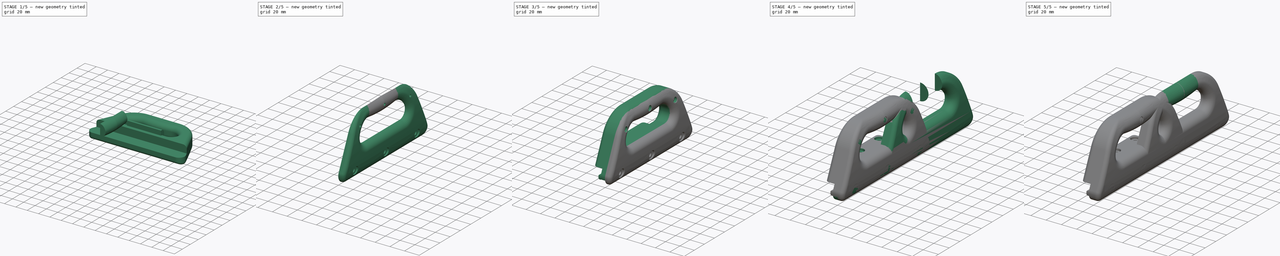
[diagram: build sequence overview — one tinted view per stage of 5, left to right]
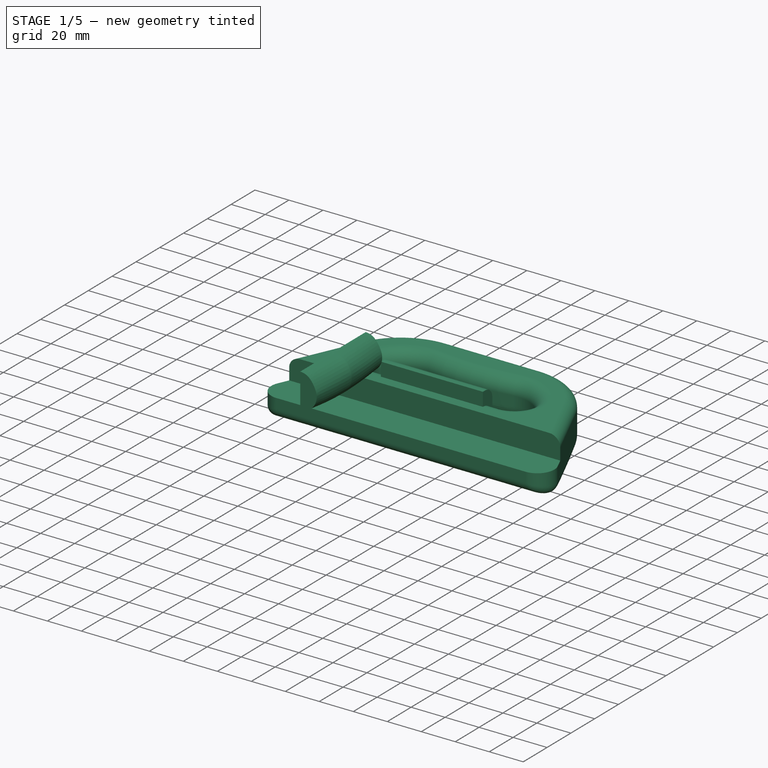
[diagram: stage 1 of 5 — iso view after this stage's code; geometry added in this stage tinted green]
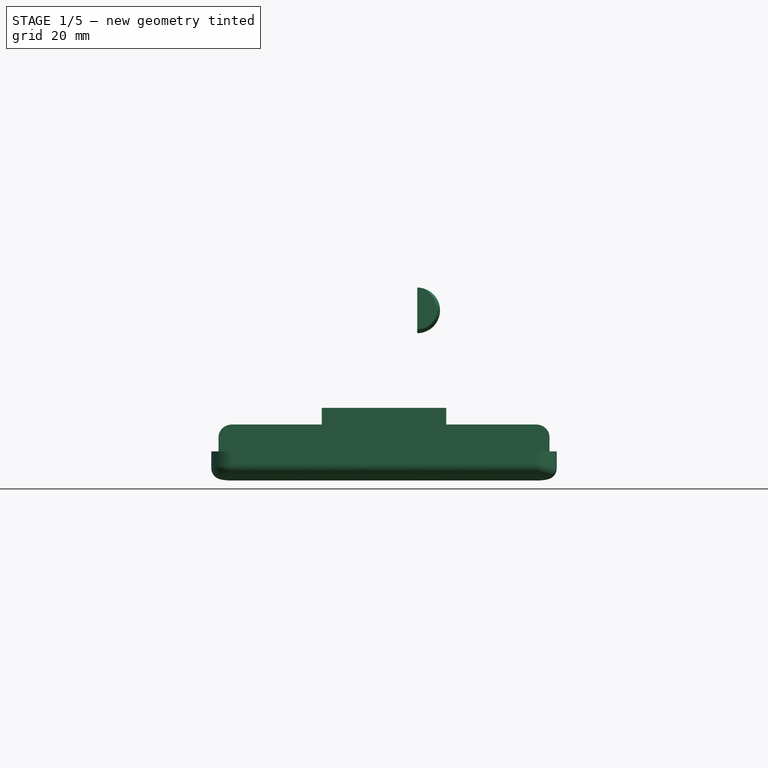
[diagram: stage 1 of 5 — front view after this stage's code; geometry added in this stage tinted green]
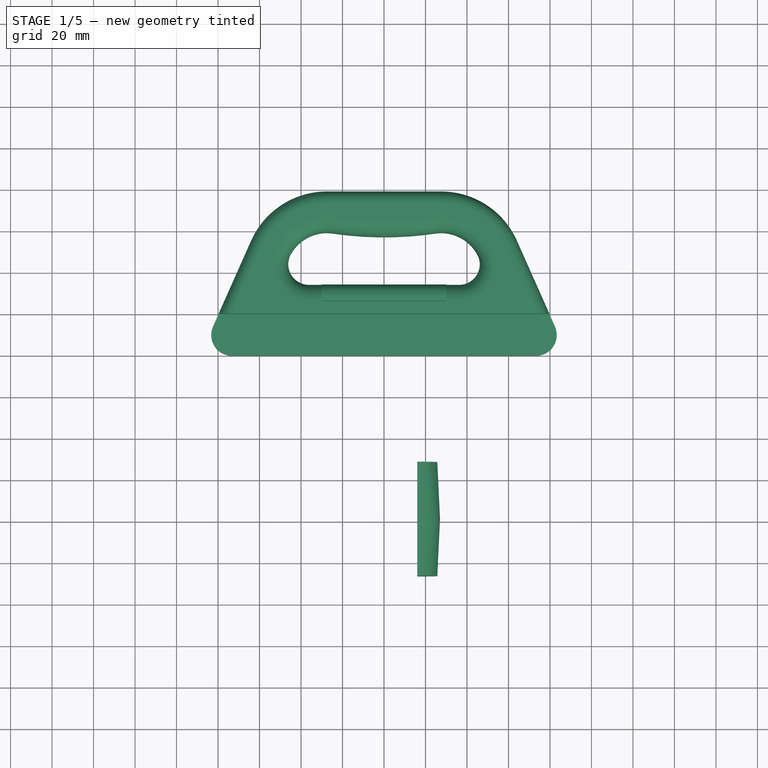
[diagram: stage 1 of 5 — top view after this stage's code; geometry added in this stage tinted green]
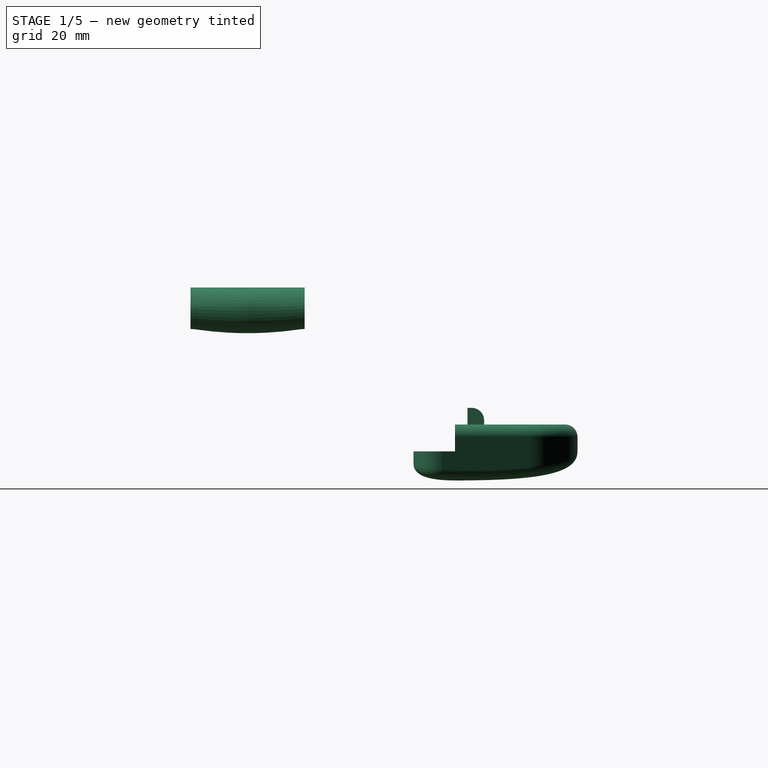
[diagram: stage 1 of 5 — right view after this stage's code; geometry added in this stage tinted green]
FCSTD DOCUMENT  (FreeCAD 0.20R29192 (Git))
Label: handle
License: All rights reserved
LicenseURL: http://en.wikipedia.org/wiki/All_rights_reserved
objects: Sketcher::SketchObject×25, PartDesign::Body×24, Part::FeaturePython×23, PartDesign::FeatureBase×17, PartDesign::Pocket×15, PartDesign::Fillet×9, PartDesign::Pad×7, Part::Plane×5, PartDesign::Chamfer×5, Part::RuledSurface×4, App::DocumentObjectGroup×4, App::FeaturePython×4, Surface::Filling×4, Part::Feature×2, Part::Mirroring×2, Part::Compound×2, Part::MultiFuse×2, Spreadsheet::Sheet×1
note: 183 computed .brp shape members not serialized (recipe doc carries the construction recipe); baked Part::Feature solids carry a one-line shape summary decoded from their .brp

FEATURE [Sketcher::SketchObject] Sketch014
  FullyConstrained = true
  MapMode = 5
  Support = -> [XY_Plane014]
  expr: Constraints[10] = Spreadsheet.cover_lip_thickness
  expr: Constraints[16] = Spreadsheet.hand_hole_height
  expr: Constraints[19] = Spreadsheet.Misumi_Aluminium_Profile_Width
  expr: Constraints[20] = Spreadsheet.panel_thickness + Spreadsheet.Foam_Thickness
  expr: Constraints[24] = Spreadsheet.handle_wall_thickness
  expr: Constraints[35] = Spreadsheet.extrusion_size / 2
  expr: Constraints[36] = Spreadsheet.handle_wall_thickness
  sketch-geometry (23):
    g0: LineSegment StartX=73.2507 StartY=0 StartZ=0 EndX=-73.2507 EndY=0 EndZ=0
    g1: ArcOfCircle CenterX=73.2507 CenterY=10 CenterZ=0 NormalX=0 NormalY=0 NormalZ=1 AngleXU=0 Radius=10 StartAngle=4.71239 EndAngle=6.70206
    g2: ArcOfCircle CenterX=-73.2507 CenterY=10 CenterZ=0 NormalX=0 NormalY=0 NormalZ=1 AngleXU=0 Radius=10 StartAngle=2.72271 EndAngle=4.71239
    g3: ArcOfCircle CenterX=36.1603 CenterY=44 CenterZ=0 NormalX=0 NormalY=0 NormalZ=1 AngleXU=0 Radius=10 StartAngle=4.71239 EndAngle=6.80678
    g4: LineSegment StartX=-36.1603 StartY=34 StartZ=0 EndX=36.1603 EndY=34 EndZ=0
    g5: ArcOfCircle CenterX=-36.1603 CenterY=44 CenterZ=0 NormalX=0 NormalY=0 NormalZ=1 AngleXU=0 Radius=10 StartAngle=2.61799 EndAngle=4.71239
    g6: LineSegment StartX=-77.0734 StartY=26 StartZ=0 EndX=77.0734 EndY=26 EndZ=0
    g7: ArcOfCircle CenterX=-27.5 CenterY=39 CenterZ=0 NormalX=0 NormalY=0 NormalZ=1 AngleXU=0 Radius=40 StartAngle=1.5708 EndAngle=2.72271
    g8: LineSegment StartX=-64.0418 StartY=55.2695 StartZ=0 EndX=-82.3862 EndY=14.0674 EndZ=0
    g9: LineSegment StartX=0 StartY=59 StartZ=0 EndX=0 EndY=34 EndZ=0
    g10: LineSegment StartX=-77.0734 StartY=20 StartZ=0 EndX=77.0734 EndY=20 EndZ=0
    g11: ArcOfCircle CenterX=-27.5 CenterY=39 CenterZ=0 NormalX=0 NormalY=0 NormalZ=1 AngleXU=0 Radius=20 StartAngle=1.4256 EndAngle=2.61799
    g12: GeomPoint X=0 Y=79 Z=0
    g13: LineSegment StartX=-27.5 StartY=79 StartZ=0 EndX=27.5 EndY=79 EndZ=0
    g14: ArcOfCircle CenterX=27.5 CenterY=39 CenterZ=0 NormalX=0 NormalY=0 NormalZ=1 AngleXU=0 Radius=40 StartAngle=0.418879 EndAngle=1.5708
    g15: ArcOfCircle CenterX=27.5 CenterY=39 CenterZ=0 NormalX=0 NormalY=0 NormalZ=1 AngleXU=0 Radius=20 StartAngle=0.523599 EndAngle=1.716
    g16: LineSegment StartX=64.0418 StartY=55.2695 StartZ=0 EndX=82.3862 EndY=14.0674 EndZ=0
    g17: LineSegment StartX=-27.5 StartY=59 StartZ=0 EndX=27.5 EndY=59 EndZ=0
    g18: ArcOfCircle CenterX=-6.41e-14 CenterY=227.062 CenterZ=0 NormalX=0 NormalY=0 NormalZ=1 AngleXU=0 Radius=170.062 StartAngle=4.56719 EndAngle=4.85759
    g19: LineSegment StartX=-27.5 StartY=79 StartZ=0 EndX=27.5 EndY=79 EndZ=0
    g20: GeomPoint X=0 Y=57 Z=0
    g21: GeomPoint X=0 Y=57 Z=0
    g22: GeomPoint X=27.5 Y=59 Z=0
  constraints (53):
    c: Tangent(g0,g1) = 1.5708
    c: Symmetric(g0,g0,g-2)
    c: PointOnObject(g0,g-1)
    c: Tangent(g0,g2) = 1.5708
    c: Equal(g3,g1)
    c: Horizontal(g4)
    c: Tangent(g3,g4) = -1.5708
    c: Tangent(g4,g5) = -1.5708
    c: Symmetric(g5,g3,g-2)
    c: Symmetric(g6,g6,g-2)
    c: DistanceY(g6,g3) = 8
    c: Tangent(g7,g8) = -1.5708
    c: Tangent(g2,g8) = -1.5708
    c: Vertical(g9)
    c: PointOnObject(g9,g4)
    c: PointOnObject(g9,g-2)
    c: DistanceY(g9,g9) = 25
    c: Symmetric(g10,g10,g-2)
    c: Equal(g10,g6)
    c: DistanceY(g-1,g10) = 20
    c: DistanceY(g10,g6) = 6
    c: Tangent(g5,g11) = -1.5708
    c: Coincident(g11,g7)
    c: PointOnObject(g12,g-2)
    c: DistanceY(g9,g12) = 20
    c: Tangent(g1,g16) = 1.5708
    c: Tangent(g16,g14) = 1.5708
    c: Tangent(g13,g14) = 1.5708
    c: Tangent(g7,g13) = 1.5708
    c: Symmetric(g13,g7,g-2)
    c: Tangent(g15,g3) = -1.5708
    c: PointOnObject(g12,g13)
    c: Equal(g14,g7)
    c: Equal(g1,g2)
    c: Angle(g16,g0) = 1.15192
    c: Radius(g1) = 10
    c: Radius(g15) = 20
    c: PointOnObject(g6,g16)
    c: Symmetric(g11,g15,g9)
    c: PointOnObject(g9,g17)
    c: Coincident(g19,g14)
    c: Coincident(g19,g7)
    c: PointOnObject(g20,g18)
    c: Coincident(g21,g20)
    c: PointOnObject(g20,g9)
    c: DistanceX(g7,g14) = 55
    c: Tangent(g18,g15) = 1.5708
    c: DistanceY(g20,g9) = 2
    c: Tangent(g11,g18) = 1.5708
    c: PointOnObject(g22,g15)
    c: Symmetric(g17,g17,g-2)
    c: Coincident(g22,g17)
    c: Vertical(g14,g17)
FEATURE [PartDesign::Pad] Pad011
  Direction = (0,0,1)
  Length = 13
  Length2 = 14
  Profile = -> Sketch014
  ReferenceAxis = -> Sketch014 [N_Axis]
  Type = 4
FEATURE [Sketcher::SketchObject] Sketch015
  FullyConstrained = true
  MapMode = 5
  Placement = pos=(0,0,13) rot=(0,0,1;0rad)
  Support = -> [Pad011]
  expr: Constraints[10] = Spreadsheet.cover_lip_width
  expr: Constraints[8] = Spreadsheet.Misumi_Aluminium_Profile_Width + Spreadsheet.Foam_Thickness + Spreadsheet.panel_thickness
  expr: Constraints[9] = Spreadsheet.cover_lip_thickness
  sketch-geometry (4):
    g0: LineSegment StartX=-30 StartY=26 StartZ=0 EndX=30 EndY=26 EndZ=0
    g1: LineSegment StartX=30 StartY=26 StartZ=0 EndX=30 EndY=34 EndZ=0
    g2: LineSegment StartX=30 StartY=34 StartZ=0 EndX=-30 EndY=34 EndZ=0
    g3: LineSegment StartX=-30 StartY=34 StartZ=0 EndX=-30 EndY=26 EndZ=0
  constraints (11):
    c: Coincident(g0,g1)
    c: Coincident(g1,g2)
    c: Coincident(g2,g3)
    c: Coincident(g3,g0)
    c: Horizontal(g0)
    c: Vertical(g1)
    c: Vertical(g3)
    c: Symmetric(g2,g1,g-2)
    c: DistanceY(g-1,g0) = 26
    c: DistanceY(g1,g1) = 8
    c: DistanceX(g2,g2) = 60
FEATURE [PartDesign::Pad] Pad012
  BaseFeature = -> Pad011
  Direction = (0,0,1)
  Length = 8
  Length2 = 10
  Profile = -> Sketch015
  ReferenceAxis = -> Sketch015 [N_Axis]
  Type = 0
FEATURE [Sketcher::SketchObject] Sketch016
  ExternalGeometry = -> [Pad012]
  FullyConstrained = true
  MapMode = 5
  Placement = pos=(0,0,0) rot=(0.57735,0.57735,0.57735;2.0944rad)
  Support = -> [YZ_Plane014]
  expr: Constraints[9] = Spreadsheet.extrusion_size
  sketch-geometry (4):
    g0: LineSegment StartX=0 StartY=13 StartZ=0 EndX=20 EndY=13 EndZ=0
    g1: LineSegment StartX=20 StartY=13 StartZ=0 EndX=20 EndY=0 EndZ=0
    g2: LineSegment StartX=20 StartY=0 StartZ=0 EndX=0 EndY=0 EndZ=0
    g3: LineSegment StartX=0 StartY=0 StartZ=0 EndX=0 EndY=13 EndZ=0
  constraints (12):
    c: Coincident(g0,g1)
    c: Coincident(g1,g2)
    c: Coincident(g2,g3)
    c: Coincident(g3,g0)
    c: Horizontal(g0)
    c: Horizontal(g2)
    c: Vertical(g1)
    c: Vertical(g3)
    c: PointOnObject(g0,g-2)
    c: DistanceX(g0,g0) = 20
    c: PointOnObject(g-3,g0)
    c: PointOnObject(g2,g-1)
FEATURE [PartDesign::Pocket] Pocket003
  BaseFeature = -> Pad012
  Direction = (-1,2e-16,-3e-16)
  Length = 0
  Length2 = 100
  Midplane = true
  Profile = -> Sketch016
  ReferenceAxis = -> Sketch016 [N_Axis]
  Type = 1
FEATURE [Sketcher::SketchObject] Sketch042
  ExternalGeometry = -> [Pocket003]
  FullyConstrained = false
  MapMode = 5
  Placement = pos=(0,0,0) rot=(0.57735,0.57735,0.57735;2.0944rad)
  Support = -> [YZ_Plane014]
  expr: Constraints[16] = Spreadsheet.M5_BHCS_HEAD_LENGTH
  expr: Constraints[17] = Spreadsheet.M5_BHCS_HEAD_DIAMETER + 1
  expr: Constraints[18] = Spreadsheet.Misumi_Aluminium_Profile_Width / 2
  expr: Constraints[1] = Spreadsheet.panel_thickness + Spreadsheet.Foam_Thickness
  expr: Constraints[9] = Spreadsheet.extrusion_size
  sketch-geometry (28):
    g0: GeomPoint X=0 Y=-6 Z=0
    g1: LineSegment StartX=0 StartY=-6 StartZ=0 EndX=79 EndY=-6 EndZ=0
    g2: LineSegment StartX=0 StartY=-14 StartZ=0 EndX=79 EndY=-14 EndZ=0
    g3: GeomPoint X=20 Y=-14 Z=0
    g4: LineSegment StartX=10 StartY=4 StartZ=0 EndX=10 EndY=-8 EndZ=0
    g5: LineSegment StartX=4.75 StartY=-8 StartZ=0 EndX=15.25 EndY=-8 EndZ=0
    g6: LineSegment StartX=15.25 StartY=-8 StartZ=0 EndX=15.25 EndY=-10.75 EndZ=0
    g7: LineSegment StartX=15.25 StartY=-10.75 StartZ=0 EndX=4.75 EndY=-10.75 EndZ=0
    g8: LineSegment StartX=4.75 StartY=-10.75 StartZ=0 EndX=4.75 EndY=-8 EndZ=0
    g9: GeomPoint X=10 Y=0 Z=0
    g10: GeomPoint X=10 Y=-14 Z=0
    g11: LineSegment StartX=4.75 StartY=-8.5 StartZ=0 EndX=15.25 EndY=-8.5 EndZ=0
    g12: ArcOfCircle CenterX=7 CenterY=-8.5 CenterZ=0 NormalX=0 NormalY=0 NormalZ=1 AngleXU=0 Radius=2.25 StartAngle=3.14159 EndAngle=4.71239
    g13: Circle CenterX=0 CenterY=-6 CenterZ=0 NormalX=0 NormalY=0 NormalZ=1 AngleXU=0 Radius=1
    g14: Circle CenterX=0 CenterY=-14 CenterZ=0 NormalX=0 NormalY=0 NormalZ=1 AngleXU=0 Radius=1
    g15: Circle CenterX=20 CenterY=-14 CenterZ=0 NormalX=0 NormalY=0 NormalZ=1 AngleXU=0 Radius=1
    g16: BSplineCurve PolesCount=3 KnotsCount=2 Degree=2 IsPeriodic=0
    g17: GeomPoint X=0 Y=-6 Z=0
    g18: GeomPoint X=20 Y=-14 Z=0
    g19: LineSegment StartX=79 StartY=0 StartZ=0 EndX=79 EndY=-100 EndZ=0
    g20: LineSegment StartX=79 StartY=-100 StartZ=0 EndX=0 EndY=-100 EndZ=0
    g21: LineSegment StartX=0 StartY=-100 StartZ=0 EndX=0 EndY=-6 EndZ=0
    g22: Circle CenterX=20 CenterY=-14 CenterZ=0 NormalX=0 NormalY=0 NormalZ=1 AngleXU=0 Radius=1
    g23: Circle CenterX=79 CenterY=-14 CenterZ=0 NormalX=0 NormalY=0 NormalZ=1 AngleXU=0 Radius=1.2051
    g24: Circle CenterX=79 CenterY=0 CenterZ=0 NormalX=0 NormalY=0 NormalZ=1 AngleXU=0 Radius=1
    g25: BSplineCurve PolesCount=3 KnotsCount=2 Degree=2 IsPeriodic=0
    g26: GeomPoint X=20 Y=-14 Z=0
    g27: GeomPoint X=79 Y=0 Z=0
  constraints (66):
    c: PointOnObject(g0,g-2)
    c: DistanceY(g0,g-1) = 6
    c: PointOnObject(g1,g-3)
    c: Horizontal(g1)
    c: Coincident(g0,g1)
    c: PointOnObject(g2,g-2)
    c: Horizontal(g2)
    c: Coincident(g2,g-3)
    c: PointOnObject(g3,g2)
    c: DistanceX(g2,g3) = 20
    c: DistanceY(g4,g4) = 12
    c: Coincident(g5,g6)
    c: Coincident(g6,g7)
    c: Coincident(g7,g8)
    c: Vertical(g6)
    c: Vertical(g8)
    c: DistanceY(g6,g6) = 2.75
    c: DistanceX(g7,g7) = 10.5
    c: DistanceX(g-1,g4) = 10
    c: PointOnObject(g9,g4)
    c: PointOnObject(g9,g-1)
    c: DistanceY(g9,g4) = 4
    c: Vertical(g4)
    c: Coincident(g8,g5)
    c: Symmetric(g5,g5,g4)
    c: PointOnObject(g4,g5)
    c: Horizontal(g7)
    c: PointOnObject(g10,g2)
    c: PointOnObject(g10,g4)
    c: PointOnObject(g11,g8)
    c: PointOnObject(g11,g6)
    c: Horizontal(g11)
    c: DistanceY(g11,g5) = 0.5
    c: PointOnObject(g12,g11)
    c: Coincident(g11,g12)
    c: Tangent(g12,g7) = 1.5708
    c: Weight(g13) = 1
    c: Coincident(g16,g0)
    c: Equal(g13,g14)
    c: Equal(g13,g15)
    c: Coincident(g16,g3)
    c: InternalAlignment(g13,g16)
    c: InternalAlignment(g14,g16)
    c: InternalAlignment(g15,g16)
    c: InternalAlignment(g17,g16)
    c: InternalAlignment(g18,g16)
    c: Coincident(g2,g14)
    c: PointOnObject(g19,g-3)
    c: PointOnObject(g19,g-1)
    c: Coincident(g20,g19)
    c: Coincident(g21,g20)
    c: Coincident(g16,g21)
    c: PointOnObject(g20,g-2)
    c: Horizontal(g20)
    c: Vertical(g19)
    c: DistanceY(g19,g19) = 100
    c: Weight(g22) = 1
    c: Coincident(g25,g16)
    c: Coincident(g23,g2)
    c: Equal(g22,g24)
    c: Coincident(g25,g19)
    c: InternalAlignment(g22,g25)
    c: InternalAlignment(g23,g25)
    c: InternalAlignment(g24,g25)
    c: InternalAlignment(g26,g25)
    c: InternalAlignment(g27,g25)
FEATURE [PartDesign::Pocket] Pocket019
  BaseFeature = -> Pocket003
  Direction = (-1,2e-16,-3e-16)
  Length = 5
  Length2 = 5
  Midplane = true
  Profile = -> Sketch042
  ReferenceAxis = -> Sketch042 [N_Axis]
  Type = 1
FEATURE [PartDesign::Fillet] Fillet002
  Base = -> Pocket019 [Edge45,Edge46,Edge48,Edge47,Edge41,Edge42,Edge43,Edge44]
  BaseFeature = -> Pocket019
  Radius = 9
  SupportTransform = false
  UseAllEdges = false
FEATURE [PartDesign::Fillet] Fillet003
  Base = -> Fillet002 [Face1]
  BaseFeature = -> Fillet002
  Radius = 5
  SupportTransform = false
  UseAllEdges = false
FEATURE [App::DocumentObjectGroup] GrExplode_Slice002  label="Exploded Slice002"
  Group = -> [Slice002_child0,Slice002_child1]
FEATURE [Part::Plane] Plane005
  AttacherType = Attacher::AttachEngine3D
  Length = 200
  Placement = pos=(22.01,-177,-25) rot=(0,-1,0;1.5708rad)
  Width = 200
FEATURE [PartDesign::Fillet] Fillet
  Base = -> Fillet003 [Edge29,Edge65,Edge63,Edge64,Edge58]
  BaseFeature = -> Fillet003
  Radius = 6
  SupportTransform = false
  UseAllEdges = false
FEATURE [PartDesign::Fillet] Fillet004
  Base = -> Fillet [Edge49,Edge48,Edge46,Edge44,Edge42,Edge40,Edge41]
  BaseFeature = -> Fillet
  Radius = 8
  SupportTransform = false
  UseAllEdges = false
FEATURE [PartDesign::Fillet] Fillet005
  Base = -> Fillet004 [Edge57]
  BaseFeature = -> Fillet004
  Radius = 6
  SupportTransform = false
  UseAllEdges = false
FEATURE [PartDesign::Body] Body030
  Group = -> [Sketch049,Pad014]
  Origin = -> Origin030
  Tip = -> Pad014
FEATURE [Part::FeaturePython] JoinCurve004  # WARN: FeaturePython — macro-defined, semantics opaque (R4)
  Active = false
  ApproxTolerance = 0.001
  Continuity = 5
  CornerBreak = false
  DegreeMax = 5
  DegreeMin = 3
  Edges = -> [Sketch047]
  ForceClosed = false
  ForceContact = true
  Parametrization = 0
  Reverse = false
  Samples = 100
  StartOffset = 0
  Tolerance = 0.01
FEATURE [Part::FeaturePython] JoinCurve005  # WARN: FeaturePython — macro-defined, semantics opaque (R4)
  Active = false
  ApproxTolerance = 0.001
  Continuity = 5
  CornerBreak = false
  DegreeMax = 5
  DegreeMin = 3
  Edges = -> [Sketch047]
  ForceClosed = false
  ForceContact = true
  Parametrization = 0
  Reverse = false
  Samples = 100
  StartOffset = 0
  Tolerance = 0.01
FEATURE [Part::RuledSurface] Ruled_Surface002
  Curve1 = -> JoinCurve004 [Edge1]
  Curve2 = -> JoinCurve005 [Edge1]
  Orientation = 0
  Placement = pos=(16,0,0) rot=(0.57735,-0.57735,-0.57735;2.0944rad)
FEATURE [App::FeaturePython] Sweep_2_rails001  # WARN: FeaturePython — macro-defined, semantics opaque (R4)
  Birail = -> Ruled_Surface002
  Blending = 1
  Extend = false
  Parametrization = 0
  Points = (961) [(16,-27.5,59),(17.0305,-27.5,59.0072),(18.0558,-27.5,59.1037),(19.0633,-27.5,59.3188),(20.0397,-27.5,59.6461),(20.9723,-27.5,60.0839),+955 more]
  ProfileSamples = 31
  Profiles = -> [JoinCurve002,JoinCurve003]
  RailSamples = 31
FEATURE [Part::FeaturePython] Approximation_Curve001  # WARN: FeaturePython — macro-defined, semantics opaque (R4)
  ApproxTolerance = 0.00368951
  ClampEnds = false
  Closed = false
  Continuity = 3
  CurvatureWeight = 1
  DegreeMax = 5
  DegreeMin = 3
  FirstIndex = 0
  LastIndex = -1
  LengthWeight = 1
  Method = 0
  Parametrization = 0
  PointObject = -> Sweep_2_rails001
  StartOffset = 0
  TorsionWeight = 1
FEATURE [Part::RuledSurface] Ruled_Surface003
  Curve1 = -> Approximation_Curve001 [Edge4]
  Curve2 = -> Approximation_Curve001 [Edge2]
  Orientation = 0
FEATURE [Surface::Filling] Surface002
  Anisotropy = false
  BoundaryEdges = -> [Approximation_Curve001,Ruled_Surface003]
  BoundaryOrder = [0,0]
  Degree = 3
  Iterations = 2
  MaximumDegree = 8
  MaximumSegments = 9
  PointsOnCurve = 15
  TolAngular = 0.01
  TolCurvature = 0.1
  Tolerance2d = 1e-05
  Tolerance3d = 0.0001
FEATURE [Surface::Filling] Surface003
  Anisotropy = false
  BoundaryEdges = -> [Ruled_Surface003,Approximation_Curve001]
  BoundaryOrder = [0,0]
  Degree = 3
  Iterations = 2
  MaximumDegree = 8
  MaximumSegments = 9
  PointsOnCurve = 15
  TolAngular = 0.01
  TolCurvature = 0.1
  Tolerance2d = 1e-05
  Tolerance3d = 0.0001
FEATURE [Part::Compound] Compound001
  Links = -> [Ruled_Surface003,Approximation_Curve001,Surface002,Surface003]
FEATURE [Part::Feature] Compound001_solid  label="Compound001 (Solid)"
  shape: bbox 12.83 x 27.5 x 24.47 mm, 4 faces (baked)
FEATURE [PartDesign::FeatureBase] Clone010
  BaseFeature = -> Compound001_solid
FEATURE [PartDesign::Body] Body031  label="insert_part"
  BaseFeature = -> Compound001_solid
  Group = -> [Clone010]
  Origin = -> Origin031
  Tip = -> Clone010
FEATURE [Part::Mirroring] Part__Mirroring001  label="insert_part (Mirror #2)"
  Base = (0,0,0)
  Normal = (0,1,0)
  Source = -> Body031
FEATURE [PartDesign::FeatureBase] Clone011
  BaseFeature = -> Part__Mirroring001
FEATURE [PartDesign::Body] Body032
  BaseFeature = -> Part__Mirroring001
  Group = -> [Clone011]
  Origin = -> Origin032
  Tip = -> Clone011
FEATURE [PartDesign::FeatureBase] Clone012
  BaseFeature = -> Compound001_solid
FEATURE [PartDesign::Body] Body033
  BaseFeature = -> Compound001_solid
  Group = -> [Clone012]
  Origin = -> Origin033
  Tip = -> Clone012
FEATURE [Part::MultiFuse] Fusion  label="insert"
  Placement = pos=(0,-80,0) rot=(0,0,1;0rad)
  Shapes = -> [Clone012,Clone011]
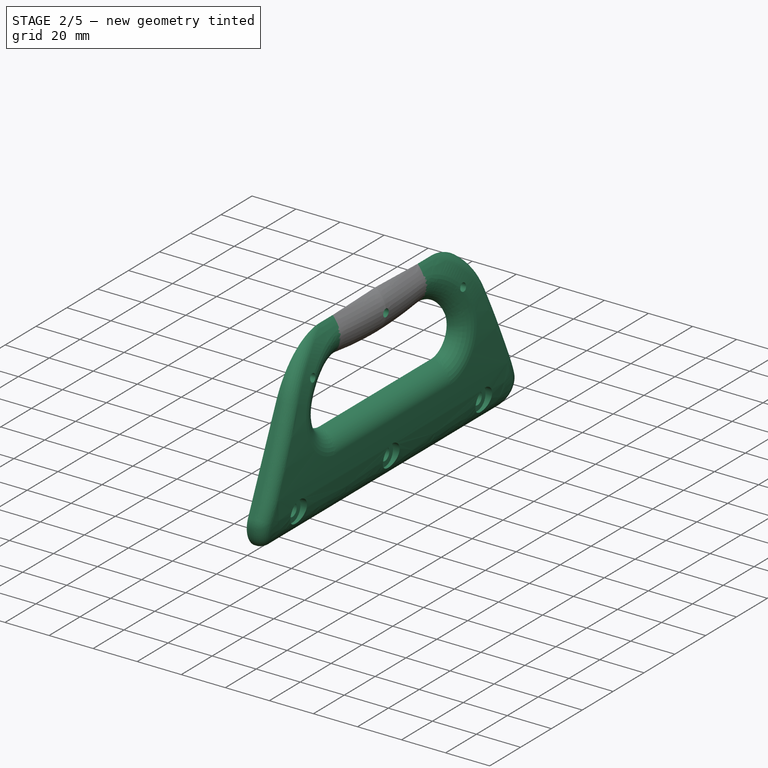
[diagram: stage 2 of 5 — iso view after this stage's code; geometry added in this stage tinted green]
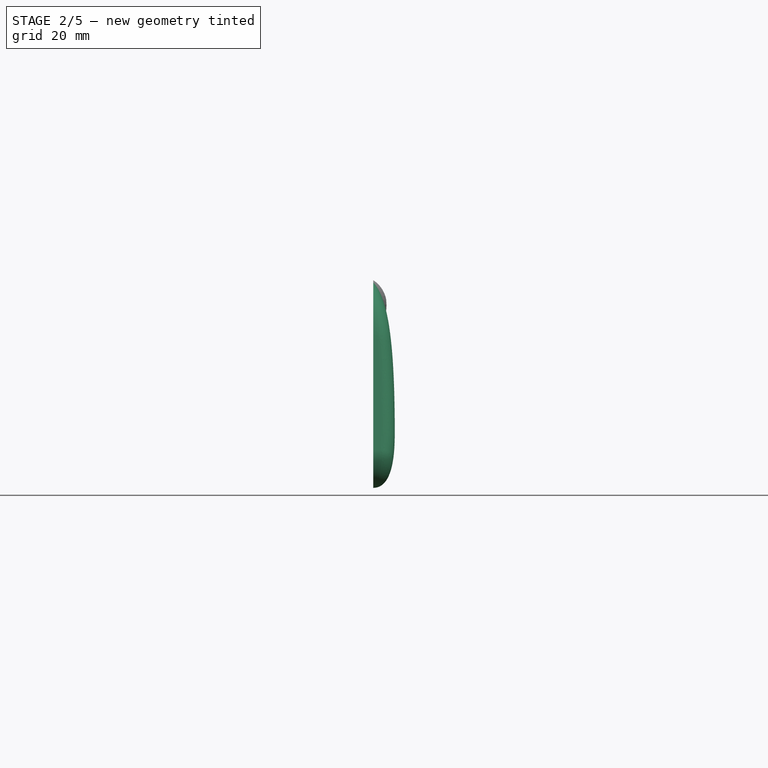
[diagram: stage 2 of 5 — front view after this stage's code; geometry added in this stage tinted green]
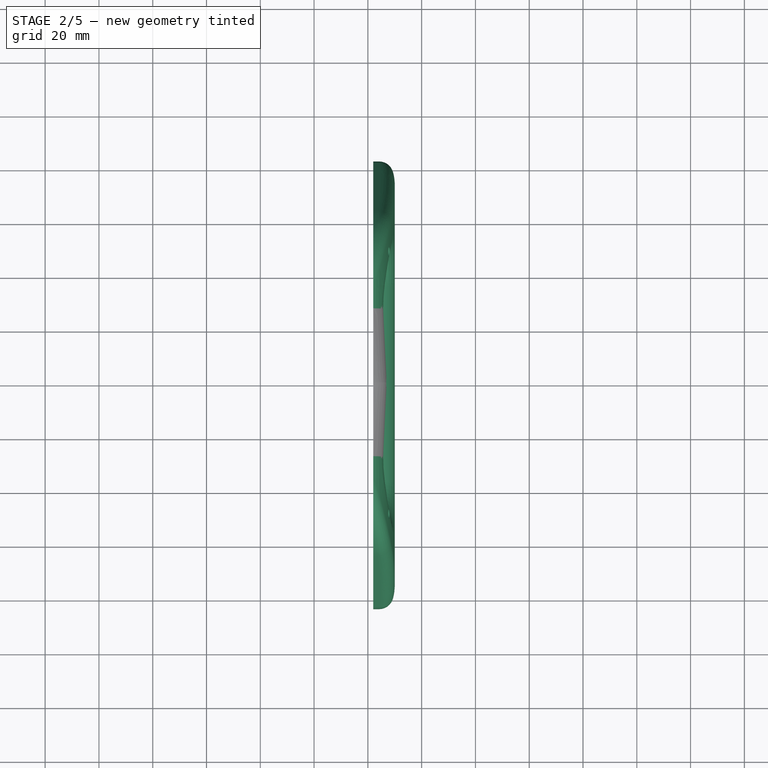
[diagram: stage 2 of 5 — top view after this stage's code; geometry added in this stage tinted green]
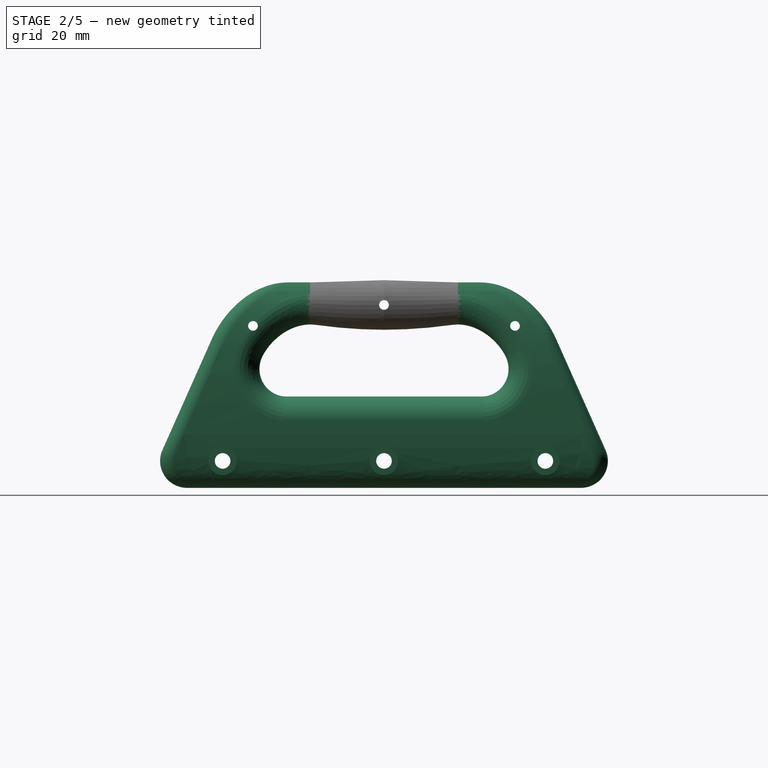
[diagram: stage 2 of 5 — right view after this stage's code; geometry added in this stage tinted green]
FEATURE [PartDesign::Fillet] Fillet006
  Base = -> Fillet005 [Face3,Edge1,Edge2,Edge4,Edge6,Edge9,Edge11,Edge15,Edge23]
  BaseFeature = -> Fillet005
  Radius = 7
  SupportTransform = false
  UseAllEdges = false
FEATURE [PartDesign::Body] Body014  label="base_part"
  Group = -> [Sketch014,Pad011,Sketch015,Pad012,Sketch016,Pocket003,Sketch042,Pocket019,Fillet002,Fillet003,Fillet,Fillet004,Fillet005,Fillet006]
  Origin = -> Origin014
  Placement = pos=(16,-80,-4e-15) rot=(0.57735,-0.57735,-0.57735;2.0944rad)
  Tip = -> Fillet006
FEATURE [PartDesign::FeatureBase] Clone
  BaseFeature = -> Body014
  Placement = pos=(16,-80,-4e-15) rot=(0.57735,-0.57735,-0.57735;2.0944rad)
FEATURE [PartDesign::Body] Body016  label="base_handle"
  BaseFeature = -> Body014
  Group = -> [Clone]
  Origin = -> Origin016
  Tip = -> Clone
FEATURE [Part::FeaturePython] Slice  # WARN: FeaturePython — macro-defined, semantics opaque (R4)
  Base = -> Body016
  Mode = 1
  Tolerance = 0
  Tools = -> [Plane]
FEATURE [Part::FeaturePython] Slice_child1  label="middle_outer"  # WARN: FeaturePython — macro-defined, semantics opaque (R4)
  Base = -> Slice
  FilterType = 1
  Invert = false
  OverrideMaxVal = 0
  WindowFrom = 80
  WindowTo = 100
  items = 1
FEATURE [App::DocumentObjectGroup] GrExplode_Slice003  label="Exploded Slice003"
  Group = -> [Slice003_child0,Slice003_child1]
FEATURE [PartDesign::FeatureBase] Clone008
  BaseFeature = -> Slice_child1
FEATURE [Sketcher::SketchObject] Sketch046
  ExternalGeometry = -> [Clone008]
  FullyConstrained = true
  MapMode = 5
  Placement = pos=(16,0,0) rot=(0.57735,-0.57735,-0.57735;2.0944rad)
  Support = -> [Clone008]
  sketch-geometry (4):
    g0: LineSegment StartX=52.5 StartY=80 StartZ=0 EndX=107.5 EndY=80 EndZ=0
    g1: LineSegment StartX=107.5 StartY=80 StartZ=0 EndX=107.5 EndY=50 EndZ=0
    g2: LineSegment StartX=107.5 StartY=50 StartZ=0 EndX=52.5 EndY=50 EndZ=0
    g3: LineSegment StartX=52.5 StartY=50 StartZ=0 EndX=52.5 EndY=80 EndZ=0
  constraints (12):
    c: Coincident(g0,g1)
    c: Coincident(g1,g2)
    c: Coincident(g2,g3)
    c: Coincident(g3,g0)
    c: Horizontal(g0)
    c: Horizontal(g2)
    c: Vertical(g1)
    c: Vertical(g3)
    c: PointOnObject(g-3,g1)
    c: PointOnObject(g-3,g3)
    c: DistanceY(g1,g1) = 30
    c: DistanceY(g-3,g0) = 1
FEATURE [PartDesign::Pocket] Pocket020
  BaseFeature = -> Clone008
  Direction = (1,-1e-16,-1e-16)
  Length = 5
  Length2 = 5
  Midplane = true
  Profile = -> Sketch046
  ReferenceAxis = -> Sketch046 [N_Axis]
  Type = 1
FEATURE [Part::MultiFuse] Fusion001
  Shapes = -> [Body026,Fusion]
FEATURE [Part::Plane] Plane006
  AttacherType = Attacher::AttachEngine3D
  Length = 200
  Placement = pos=(22,-180,-37) rot=(0,-1,0;1.5708rad)
  Width = 200
FEATURE [PartDesign::FeatureBase] Clone013
  BaseFeature = -> Fusion001
FEATURE [Sketcher::SketchObject] Sketch050
  ExternalGeometry = -> [Clone013]
  FullyConstrained = true
  MapMode = 5
  Placement = pos=(16,0,0) rot=(0.57735,-0.57735,-0.57735;2.0944rad)
  Support = -> [Clone013]
  expr: Constraints[4] = Spreadsheet.M3_HOLE_DIAMETER
  expr: Constraints[5] = Spreadsheet.Misumi_Aluminium_Profile_Width * 1.5
  sketch-geometry (5):
    g0: LineSegment StartX=80 StartY=68 StartZ=0 EndX=80 EndY=0 EndZ=0
    g1: Circle CenterX=31.2868 CenterY=60.2132 CenterZ=0 NormalX=0 NormalY=0 NormalZ=1 AngleXU=0 Radius=1.8
    g2: Circle CenterX=80 CenterY=68 CenterZ=0 NormalX=0 NormalY=0 NormalZ=1 AngleXU=0 Radius=1.8
    g3: Circle CenterX=128.713 CenterY=60.2132 CenterZ=0 NormalX=0 NormalY=0 NormalZ=1 AngleXU=0 Radius=1.8
    g4: LineSegment StartX=128.713 StartY=60.2132 StartZ=0 EndX=80 EndY=11.5 EndZ=0
  constraints (13):
    c: Symmetric(g-3,g-4,g0)
    c: DistanceY(g-1,g2) = 68
    c: Equal(g1,g2)
    c: Equal(g2,g3)
    c: Diameter(g3) = 3.6
    c: Distance(g-4,g3) = 30
    c: Symmetric(g1,g3,g0)
    c: PointOnObject(g0,g-1)
    c: Coincident(g0,g2)
    c: Coincident(g4,g3)
    c: PointOnObject(g4,g0)
    c: PointOnObject(g-4,g4)
    c: Angle(g4,g0) = 0.785398
FEATURE [PartDesign::Pocket] Pocket021
  BaseFeature = -> Clone013
  Direction = (1,-1e-16,-1e-16)
  Length = 5
  Length2 = 5
  Profile = -> Sketch050
  ReferenceAxis = -> Sketch050 [N_Axis]
  Type = 1
FEATURE [PartDesign::Body] Body035  label="inner_part"
  BaseFeature = -> Slice_child0
  Group = -> [Clone014,Sketch051,Pocket022,Sketch052,Sketch053,Sketch054,Sketch055,Pocket023,Pocket024,Pocket025,Pad015,Chamfer,Chamfer001,Chamfer002,Fillet007]
  Origin = -> Origin035
  Tip = -> Fillet007
FEATURE [Part::FeaturePython] Slice004  # WARN: FeaturePython — macro-defined, semantics opaque (R4)
  Base = -> Body034
  Mode = 1
  Tolerance = 0
  Tools = -> [Plane006]
FEATURE [Part::FeaturePython] Slice004_child1  label="Slice004.1"  # WARN: FeaturePython — macro-defined, semantics opaque (R4)
  Base = -> Slice004
  FilterType = 1
  Invert = false
  OverrideMaxVal = 0
  WindowFrom = 80
  WindowTo = 100
  items = 1
FEATURE [PartDesign::FeatureBase] Clone016
  BaseFeature = -> Slice004_child1
FEATURE [PartDesign::Body] Body036  label="middle_part"
  BaseFeature = -> Slice004_child0
  Group = -> [Clone015,Sketch056,Pocket026,Sketch057,Pocket027,Sketch058,Pad016,Chamfer003,Chamfer004]
  Origin = -> Origin036
  Tip = -> Chamfer004
FEATURE [Sketcher::SketchObject] Sketch059
  ExternalGeometry = -> [Clone016]
  FullyConstrained = true
  MapMode = 5
  Placement = pos=(22,0,0) rot=(0.57735,-0.57735,-0.57735;2.0944rad)
  Support = -> [Clone016]
  expr: Constraints[10] = Spreadsheet.hole_ab_distance
  expr: Constraints[11] = Spreadsheet.Misumi_Aluminium_Profile_Width / 2
  expr: Constraints[2] = Spreadsheet.M5_HOLE_DIAMETER
  sketch-geometry (5):
    g0: Circle CenterX=80 CenterY=10 CenterZ=0 NormalX=0 NormalY=0 NormalZ=1 AngleXU=0 Radius=2.9
    g1: Circle CenterX=140 CenterY=10 CenterZ=0 NormalX=0 NormalY=0 NormalZ=1 AngleXU=0 Radius=2.9
    g2: Circle CenterX=20 CenterY=10 CenterZ=0 NormalX=0 NormalY=0 NormalZ=1 AngleXU=0 Radius=2.9
    g3: LineSegment StartX=20 StartY=10 StartZ=0 EndX=80 EndY=10 EndZ=0
    g4: LineSegment StartX=80 StartY=10 StartZ=0 EndX=140 EndY=10 EndZ=0
  constraints (13):
    c: Equal(g2,g0)
    c: Equal(g0,g1)
    c: Diameter(g1) = 5.8
    c: Coincident(g3,g2)
    c: Coincident(g3,g0)
    c: Coincident(g4,g0)
    c: Coincident(g4,g1)
    c: Horizontal(g4)
    c: Horizontal(g3)
    c: Equal(g3,g4)
    c: Distance(g4) = 60
    c: DistanceY(g-1,g2) = 10
    c: Vertical(g0,g-3)
FEATURE [PartDesign::Pocket] Pocket028
  BaseFeature = -> Clone016
  Direction = (1,-1e-16,-1e-16)
  Length = 5
  Length2 = 5
  Profile = -> Sketch059
  ReferenceAxis = -> Sketch059 [N_Axis]
  Type = 1
FEATURE [Sketcher::SketchObject] Sketch060
  ExternalGeometry = -> [Pocket028]
  FullyConstrained = true
  MapMode = 5
  Placement = pos=(22,0,0) rot=(0.57735,-0.57735,-0.57735;2.0944rad)
  Support = -> [Pocket028]
  expr: Constraints[5] = Spreadsheet.M5_BHCS_HEAD_DIAMETER + 1
  sketch-geometry (3):
    g0: Circle CenterX=20 CenterY=10 CenterZ=0 NormalX=0 NormalY=0 NormalZ=1 AngleXU=0 Radius=5.25
    g1: Circle CenterX=80 CenterY=10 CenterZ=0 NormalX=0 NormalY=0 NormalZ=1 AngleXU=0 Radius=5.25
    g2: Circle CenterX=140 CenterY=10 CenterZ=0 NormalX=0 NormalY=0 NormalZ=1 AngleXU=0 Radius=5.25
  constraints (6):
    c: Coincident(g0,g-3)
    c: Coincident(g1,g-4)
    c: Coincident(g2,g-5)
    c: Equal(g0,g1)
    c: Equal(g1,g2)
    c: Diameter(g1) = 10.5
FEATURE [PartDesign::Pocket] Pocket029
  BaseFeature = -> Pocket028
  Direction = (1,-1e-16,-1e-16)
  Length = 4.4
  Length2 = -30
  Profile = -> Sketch060
  ReferenceAxis = -> Sketch060 [N_Axis]
  Type = 4
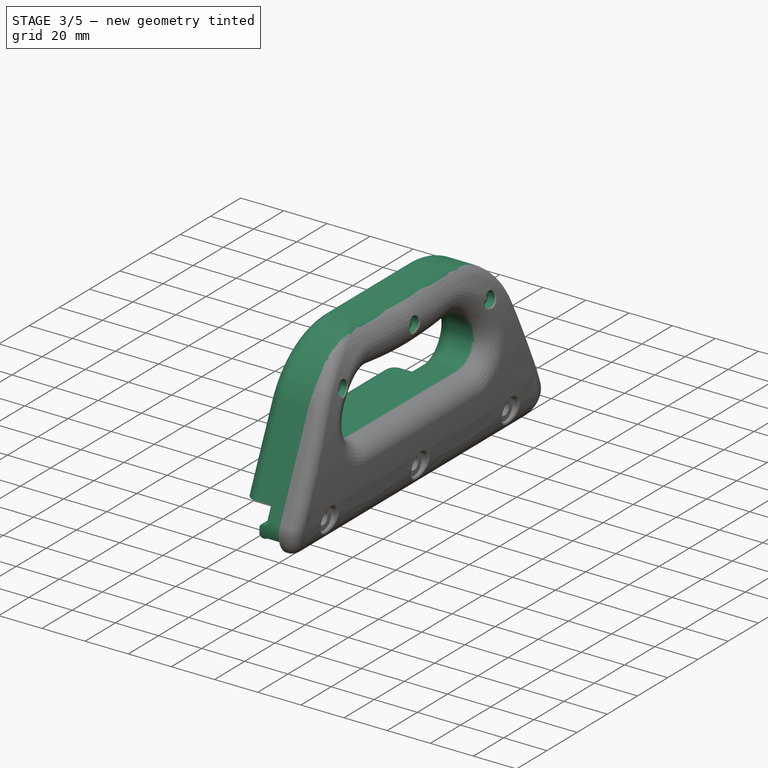
[diagram: stage 3 of 5 — iso view after this stage's code; geometry added in this stage tinted green]
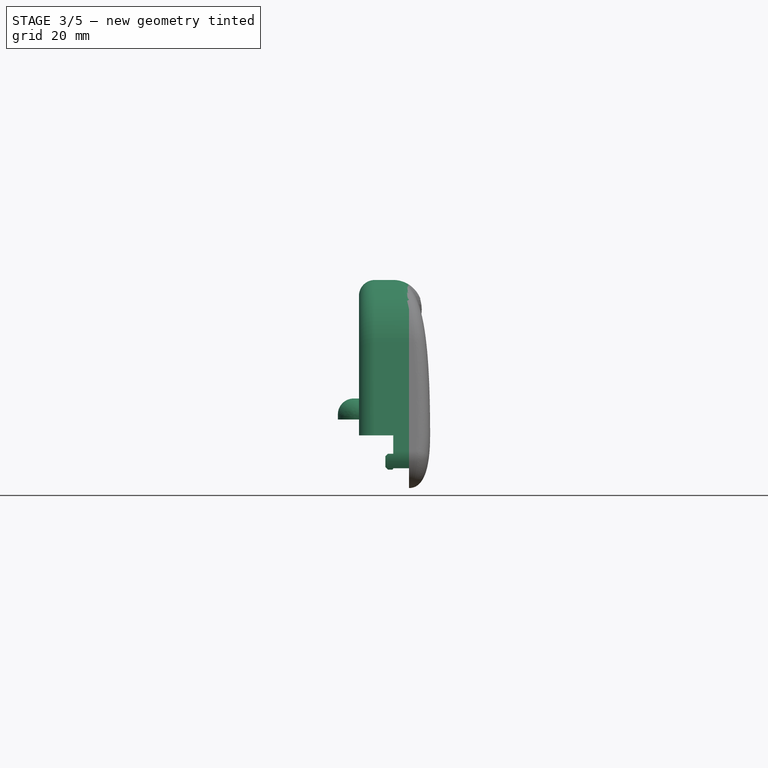
[diagram: stage 3 of 5 — front view after this stage's code; geometry added in this stage tinted green]
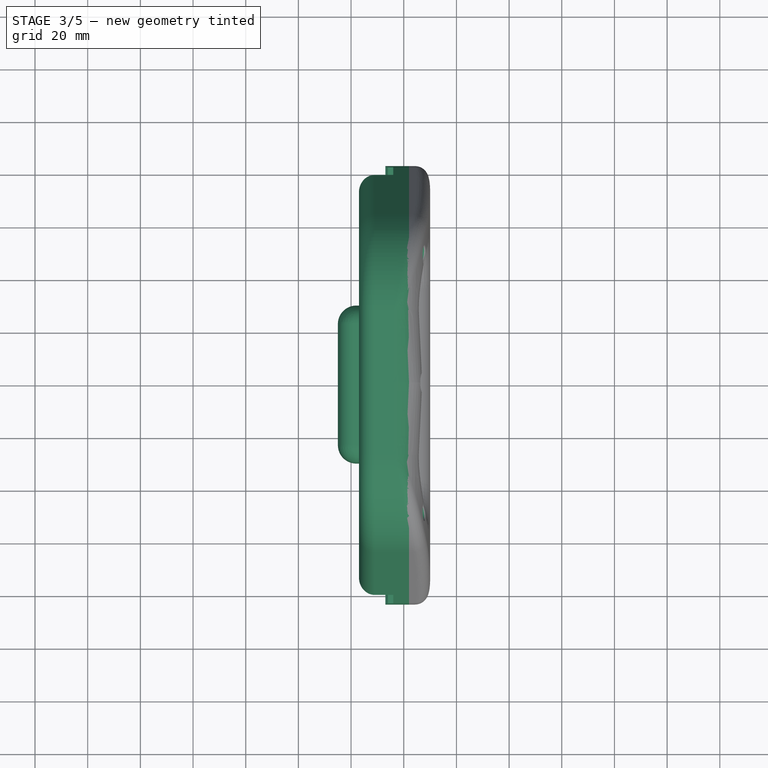
[diagram: stage 3 of 5 — top view after this stage's code; geometry added in this stage tinted green]
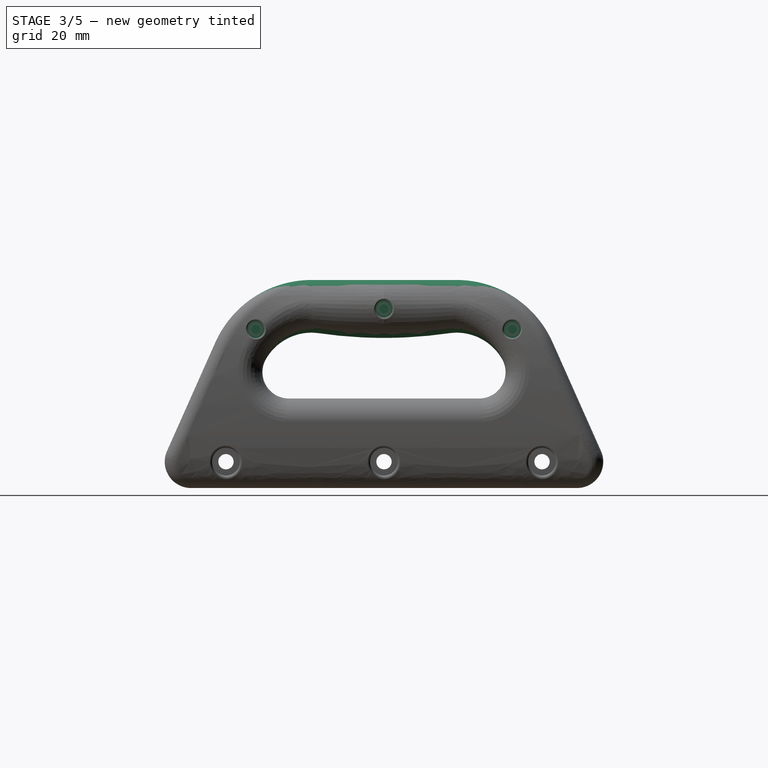
[diagram: stage 3 of 5 — right view after this stage's code; geometry added in this stage tinted green]
FEATURE [Part::FeaturePython] Slice_child0  label="inner"  # WARN: FeaturePython — macro-defined, semantics opaque (R4)
  Base = -> Slice
  FilterType = 1
  Invert = false
  OverrideMaxVal = 0
  WindowFrom = 80
  WindowTo = 100
  items = 0
FEATURE [PartDesign::Body] Body034
  BaseFeature = -> Fusion001
  Group = -> [Clone013,Sketch050,Pocket021]
  Origin = -> Origin034
  Tip = -> Pocket021
FEATURE [PartDesign::FeatureBase] Clone014
  BaseFeature = -> Slice_child0
FEATURE [Sketcher::SketchObject] Sketch051
  ExternalGeometry = -> [Clone013]
  FullyConstrained = true
  MapMode = 5
  Placement = pos=(16,0,0) rot=(0.57735,-0.57735,-0.57735;2.0944rad)
  Support = -> [Clone013]
  expr: Constraints[4] = Spreadsheet.M3_HOLE_DIAMETER
  expr: Constraints[5] = Spreadsheet.handle_wall_thickness * 1.5
  sketch-geometry (5):
    g0: LineSegment StartX=80 StartY=68 StartZ=0 EndX=80 EndY=0 EndZ=0
    g1: Circle CenterX=31.2868 CenterY=60.2132 CenterZ=0 NormalX=0 NormalY=0 NormalZ=1 AngleXU=0 Radius=1.8
    g2: Circle CenterX=80 CenterY=68 CenterZ=0 NormalX=0 NormalY=0 NormalZ=1 AngleXU=0 Radius=1.8
    g3: Circle CenterX=128.713 CenterY=60.2132 CenterZ=0 NormalX=0 NormalY=0 NormalZ=1 AngleXU=0 Radius=1.8
    g4: LineSegment StartX=128.713 StartY=60.2132 StartZ=0 EndX=80 EndY=11.5 EndZ=0
  constraints (13):
    c: Symmetric(g-3,g-4,g0)
    c: DistanceY(g-1,g2) = 68
    c: Equal(g1,g2)
    c: Equal(g2,g3)
    c: Diameter(g3) = 3.6
    c: Distance(g-4,g3) = 30
    c: Symmetric(g1,g3,g0)
    c: PointOnObject(g0,g-1)
    c: Coincident(g0,g2)
    c: Coincident(g4,g3)
    c: PointOnObject(g4,g0)
    c: PointOnObject(g-4,g4)
    c: Angle(g4,g0) = 0.785398
FEATURE [PartDesign::Pocket] Pocket022
  BaseFeature = -> Clone014
  Direction = (1,-1e-16,-1e-16)
  Length = 6
  Length2 = 5
  Profile = -> Sketch051
  ReferenceAxis = -> Sketch051 [N_Axis]
  Reversed = true
  Type = 0
FEATURE [Part::FeaturePython] Slice004_child0  label="Slice004.0"  # WARN: FeaturePython — macro-defined, semantics opaque (R4)
  Base = -> Slice004
  FilterType = 1
  Invert = false
  OverrideMaxVal = 0
  WindowFrom = 80
  WindowTo = 100
  items = 0
FEATURE [App::DocumentObjectGroup] GrExplode_Slice004  label="Exploded Slice004"
  Group = -> [Slice004_child0,Slice004_child1]
FEATURE [PartDesign::FeatureBase] Clone015
  BaseFeature = -> Slice004_child0
FEATURE [Sketcher::SketchObject] Sketch056
  ExternalGeometry = -> [Clone015]
  FullyConstrained = true
  MapMode = 5
  Placement = pos=(0,0,0) rot=(1,0,0;1.5708rad)
  Support = -> [XZ_Plane036]
  expr: Constraints[8] = Spreadsheet.Misumi_Aluminium_Profile_Width / 2 - Spreadsheet.Misumi_Aluminium_Profile_Slot_Width / 2 + 0.5
  sketch-geometry (4):
    g0: LineSegment StartX=16 StartY=7.5 StartZ=0 EndX=22 EndY=7.5 EndZ=0
    g1: LineSegment StartX=22 StartY=7.5 StartZ=0 EndX=22 EndY=-1.8e-15 EndZ=0
    g2: LineSegment StartX=22 StartY=-1.8e-15 StartZ=0 EndX=16 EndY=-1.8e-15 EndZ=0
    g3: LineSegment StartX=16 StartY=-1.8e-15 StartZ=0 EndX=16 EndY=7.5 EndZ=0
  constraints (11):
    c: Coincident(g0,g1)
    c: Coincident(g1,g2)
    c: Coincident(g2,g3)
    c: Coincident(g3,g0)
    c: Horizontal(g0)
    c: Horizontal(g2)
    c: Vertical(g1)
    c: Vertical(g3)
    c: DistanceY(g1,g1) = 7.5
    c: Coincident(g2,g-3)
    c: PointOnObject(g-4,g1)
FEATURE [PartDesign::Pocket] Pocket026
  BaseFeature = -> Clone015
  Direction = (0,1,2e-16)
  Length = 5
  Length2 = 5
  Midplane = true
  Profile = -> Sketch056
  ReferenceAxis = -> Sketch056 [N_Axis]
  Type = 1
FEATURE [Sketcher::SketchObject] Sketch057
  ExternalGeometry = -> [Pocket026]
  FullyConstrained = true
  MapMode = 5
  Placement = pos=(22,0,0) rot=(0.57735,0.57735,0.57735;2.0944rad)
  Support = -> [Pocket026]
  expr: Constraints[11] = Spreadsheet.Misumi_Aluminium_Profile_Width / 2
  expr: Constraints[12] = Spreadsheet.M5_HOLE_DIAMETER
  expr: Constraints[9] = Spreadsheet.hole_ab_distance
  sketch-geometry (5):
    g0: Circle CenterX=-140 CenterY=10 CenterZ=0 NormalX=0 NormalY=0 NormalZ=1 AngleXU=0 Radius=2.9
    g1: Circle CenterX=-80 CenterY=10 CenterZ=0 NormalX=0 NormalY=0 NormalZ=1 AngleXU=0 Radius=2.9
    g2: Circle CenterX=-20 CenterY=10 CenterZ=0 NormalX=0 NormalY=0 NormalZ=1 AngleXU=0 Radius=2.9
    g3: LineSegment StartX=-140 StartY=10 StartZ=0 EndX=-80 EndY=10 EndZ=0
    g4: LineSegment StartX=-80 StartY=10 StartZ=0 EndX=-20 EndY=10 EndZ=0
  constraints (13):
    c: Equal(g0,g1)
    c: Equal(g1,g2)
    c: Coincident(g3,g0)
    c: Coincident(g3,g1)
    c: Horizontal(g3)
    c: Coincident(g4,g1)
    c: Coincident(g4,g2)
    c: Horizontal(g4)
    c: Equal(g3,g4)
    c: DistanceX(g4,g4) = 60
    c: Vertical(g-3,g1)
    c: DistanceY(g-1,g2) = 10
    c: Diameter(g2) = 5.8
FEATURE [PartDesign::Pocket] Pocket027
  BaseFeature = -> Pocket026
  Direction = (-1,-1e-16,1e-16)
  Length = 5
  Length2 = 5
  Profile = -> Sketch057
  ReferenceAxis = -> Sketch057 [N_Axis]
  Type = 1
FEATURE [Sketcher::SketchObject] Sketch058
  ExternalGeometry = -> [Pocket027]
  FullyConstrained = true
  MapMode = 5
  Placement = pos=(16,-4.5e-15,-3.5e-15) rot=(-0.57735,0.57735,0.57735;4.18879rad)
  Support = -> [Pocket027]
  expr: Constraints[21] = Spreadsheet.Misumi_Aluminium_Profile_Slot_Width
  sketch-geometry (24):
    g0: LineSegment StartX=9 StartY=13 StartZ=0 EndX=9 EndY=7 EndZ=0
    g1: LineSegment StartX=151 StartY=7 StartZ=0 EndX=151 EndY=13 EndZ=0
    g2: LineSegment StartX=31 StartY=13 StartZ=0 EndX=69 EndY=13 EndZ=0
    g3: LineSegment StartX=69 StartY=13 StartZ=0 EndX=69 EndY=7 EndZ=0
    g4: LineSegment StartX=69 StartY=7 StartZ=0 EndX=31 EndY=7 EndZ=0
    g5: LineSegment StartX=31 StartY=7 StartZ=0 EndX=31 EndY=13 EndZ=0
    g6: LineSegment StartX=91 StartY=13 StartZ=0 EndX=129 EndY=13 EndZ=0
    g7: LineSegment StartX=129 StartY=13 StartZ=0 EndX=129 EndY=7 EndZ=0
    g8: LineSegment StartX=129 StartY=7 StartZ=0 EndX=91 EndY=7 EndZ=0
    g9: LineSegment StartX=91 StartY=7 StartZ=0 EndX=91 EndY=13 EndZ=0
    g10: LineSegment StartX=9 StartY=13 StartZ=0 EndX=31 EndY=13 EndZ=0
    g11: LineSegment StartX=69 StartY=13 StartZ=0 EndX=91 EndY=13 EndZ=0
    g12: LineSegment StartX=129 StartY=13 StartZ=0 EndX=151 EndY=13 EndZ=0
    g13: LineSegment StartX=69 StartY=13 StartZ=0 EndX=80 EndY=10 EndZ=0
    g14: LineSegment StartX=80 StartY=10 StartZ=0 EndX=91 EndY=13 EndZ=0
    g15: LineSegment StartX=80 StartY=10 StartZ=0 EndX=91 EndY=7 EndZ=0
    g16: LineSegment StartX=20 StartY=10 StartZ=0 EndX=31 EndY=13 EndZ=0
    g17: LineSegment StartX=140 StartY=10 StartZ=0 EndX=151 EndY=13 EndZ=0
    g18: ArcOfCircle CenterX=153.251 CenterY=10 CenterZ=0 NormalX=0 NormalY=0 NormalZ=1 AngleXU=0 Radius=10 StartAngle=5.97849 EndAngle=6.58788
    g19: LineSegment StartX=151 StartY=13 StartZ=0 EndX=162.79 EndY=13 EndZ=0
    g20: LineSegment StartX=162.79 StartY=7 StartZ=0 EndX=151 EndY=7 EndZ=0
    g21: ArcOfCircle CenterX=6.74928 CenterY=10 CenterZ=0 NormalX=0 NormalY=0 NormalZ=1 AngleXU=0 Radius=10 StartAngle=2.8369 EndAngle=3.44629
    g22: LineSegment StartX=-2.79011 StartY=13 StartZ=0 EndX=9 EndY=13 EndZ=0
    g23: LineSegment StartX=-2.79011 StartY=7 StartZ=0 EndX=9 EndY=7 EndZ=0
  constraints (64):
    c: Vertical(g0)
    c: Vertical(g1)
    c: Horizontal(g2)
    c: Coincident(g3,g2)
    c: Vertical(g3)
    c: Coincident(g4,g3)
    c: Horizontal(g4)
    c: Coincident(g5,g4)
    c: Coincident(g5,g2)
    c: Vertical(g5)
    c: Coincident(g6,g7)
    c: Coincident(g7,g8)
    c: Coincident(g8,g9)
    c: Coincident(g9,g6)
    c: Horizontal(g6)
    c: Horizontal(g8)
    c: Vertical(g7)
    c: Vertical(g9)
    c: Equal(g0,g5)
    c: Equal(g5,g9)
    c: Equal(g9,g1)
    c: DistanceY(g9,g9) = 6
    c: Horizontal(g0,g2)
    c: Horizontal(g2,g6)
    c: Horizontal(g6,g1)
    c: Coincident(g11,g2)
    c: Coincident(g12,g6)
    c: Coincident(g12,g1)
    c: Coincident(g11,g6)
    c: Coincident(g10,g2)
    c: Equal(g10,g11)
    c: Equal(g11,g12)
    c: DistanceX(g2,g6) = 22
    c: Coincident(g0,g10)
    c: Coincident(g13,g2)
    c: Coincident(g13,g-5)
    c: Coincident(g14,g13)
    c: Coincident(g14,g6)
    c: Equal(g13,g14)
    c: Coincident(g15,g13)
    c: Coincident(g15,g8)
    c: Equal(g14,g15)
    c: Coincident(g16,g-6)
    c: Coincident(g16,g2)
    c: Coincident(g17,g-7)
    c: Coincident(g17,g1)
    c: Equal(g17,g16)
    c: Equal(g16,g14)
    c: Coincident(g18,g-4)
    c: PointOnObject(g18,g-4)
    c: Coincident(g19,g1)
    c: Coincident(g18,g19)
    c: Horizontal(g19)
    c: Coincident(g18,g20)
    c: Coincident(g1,g20)
    c: Horizontal(g20)
    c: Coincident(g21,g-3)
    c: PointOnObject(g21,g-3)
    c: Coincident(g22,g21)
    c: Coincident(g22,g0)
    c: Horizontal(g22)
    c: Coincident(g23,g21)
    c: Coincident(g23,g0)
    c: Horizontal(g23)
FEATURE [PartDesign::Pad] Pad016
  BaseFeature = -> Pocket027
  Direction = (-1,2e-16,2e-16)
  Length = 3
  Length2 = 10
  Profile = -> Sketch058
  ReferenceAxis = -> Sketch058 [N_Axis]
  Type = 0
FEATURE [PartDesign::Chamfer] Chamfer003
  Angle = 45
  Base = -> Pad016 [Edge154,Edge213,Edge141,Edge209,Edge128,Edge207,Edge113,Edge204]
  BaseFeature = -> Pad016
  ChamferType = 0
  FlipDirection = false
  Size = 1
  Size2 = 1
  SupportTransform = false
  UseAllEdges = false
FEATURE [PartDesign::Chamfer] Chamfer004
  Angle = 45
  Base = -> Chamfer003 [Edge159,Edge154,Edge150,Edge44]
  BaseFeature = -> Chamfer003
  ChamferType = 0
  FlipDirection = false
  Size = 0.34
  Size2 = 1
  SupportTransform = false
  UseAllEdges = false
FEATURE [Sketcher::SketchObject] Sketch061
  ExternalGeometry = -> [Pocket029]
  FullyConstrained = true
  MapMode = 5
  Placement = pos=(22,0,0) rot=(0.57735,-0.57735,-0.57735;2.0944rad)
  Support = -> [Pocket029]
  expr: Constraints[3] = Spreadsheet.M3_SHCS_HEAD_DIAMETER + 1
  sketch-geometry (2):
    g0: Circle CenterX=31.2868 CenterY=60.2132 CenterZ=0 NormalX=0 NormalY=0 NormalZ=1 AngleXU=0 Radius=3.25
    g1: Circle CenterX=128.713 CenterY=60.2132 CenterZ=0 NormalX=0 NormalY=0 NormalZ=1 AngleXU=0 Radius=3.25
  constraints (4):
    c: Coincident(g0,g-3)
    c: Coincident(g1,g-5)
    c: Equal(g1,g0)
    c: Diameter(g1) = 6.5
FEATURE [PartDesign::Pocket] Pocket030
  BaseFeature = -> Pocket029
  Direction = (1,-1e-16,-1e-16)
  Length = 2.4
  Length2 = -30
  Profile = -> Sketch061
  ReferenceAxis = -> Sketch061 [N_Axis]
  Type = 4
FEATURE [PartDesign::Fillet] Fillet008
  Base = -> Pocket030 [Edge97,Edge95,Edge93]
  BaseFeature = -> Pocket030
  Radius = 1
  SupportTransform = false
  UseAllEdges = false
FEATURE [App::FeaturePython] Constraints  # WARN: FeaturePython — macro-defined, semantics opaque (R4)
  _Version = 1
FEATURE [App::FeaturePython] Elements  # WARN: FeaturePython — macro-defined, semantics opaque (R4)
FEATURE [Sketcher::SketchObject] Sketch062
  ExternalGeometry = -> [Fillet008]
  FullyConstrained = true
  MapMode = 5
  Placement = pos=(22,0,0) rot=(0.57735,-0.57735,-0.57735;2.0944rad)
  expr: Constraints[0] = Spreadsheet.M3_SHCS_HEAD_DIAMETER + 1
  sketch-geometry (1):
    g0: Circle CenterX=80 CenterY=68 CenterZ=0 NormalX=0 NormalY=0 NormalZ=1 AngleXU=0 Radius=3.25
  constraints (2):
    c: Diameter(g0) = 6.5
    c: Coincident(g0,g-3)
FEATURE [PartDesign::Pocket] Pocket031
  BaseFeature = -> Fillet008
  Direction = (1,0,0)
  Length = 1.4
  Length2 = -30
  Profile = -> Sketch062
  ReferenceAxis = -> Sketch062 [N_Axis]
  Type = 4
FEATURE [PartDesign::Fillet] Fillet009
  Base = -> Pocket031 [Edge82,Edge80,Edge104,Edge154,Edge34]
  BaseFeature = -> Pocket031
  Radius = 0.6
  SupportTransform = false
  UseAllEdges = false
FEATURE [PartDesign::Body] Body037  label="outer_part"
  BaseFeature = -> Slice004_child1
  Group = -> [Clone016,Sketch059,Pocket028,Sketch060,Pocket029,Sketch061,Pocket030,Fillet008,Sketch062,Pocket031,Fillet009]
  Origin = -> Origin037
  Tip = -> Fillet009
FEATURE [Part::FeaturePython] Parts  # WARN: FeaturePython — macro-defined, semantics opaque (R4)
  Group = -> [Body035,Body036,Body037]
  GroupMode = 0
FEATURE [Part::FeaturePython] Assembly  label="handle"  # WARN: FeaturePython — macro-defined, semantics opaque (R4)
  AutoRelax = true
  BuildShape = 0
  Freeze = false
  Group = -> [Constraints,Elements,Parts]
  Verbose = false
  _SolverType = 1
  _Version = 1
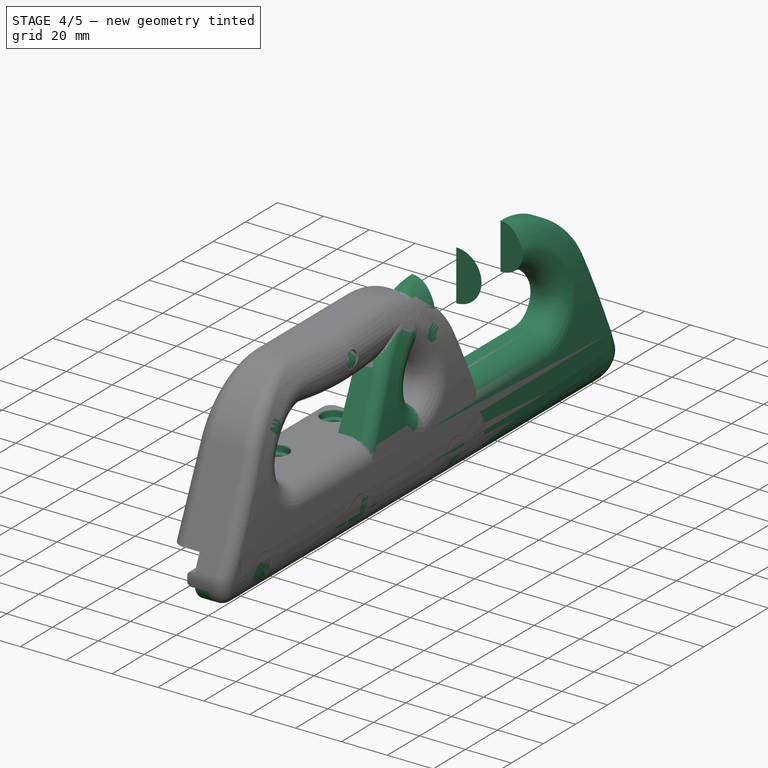
[diagram: stage 4 of 5 — iso view after this stage's code; geometry added in this stage tinted green]
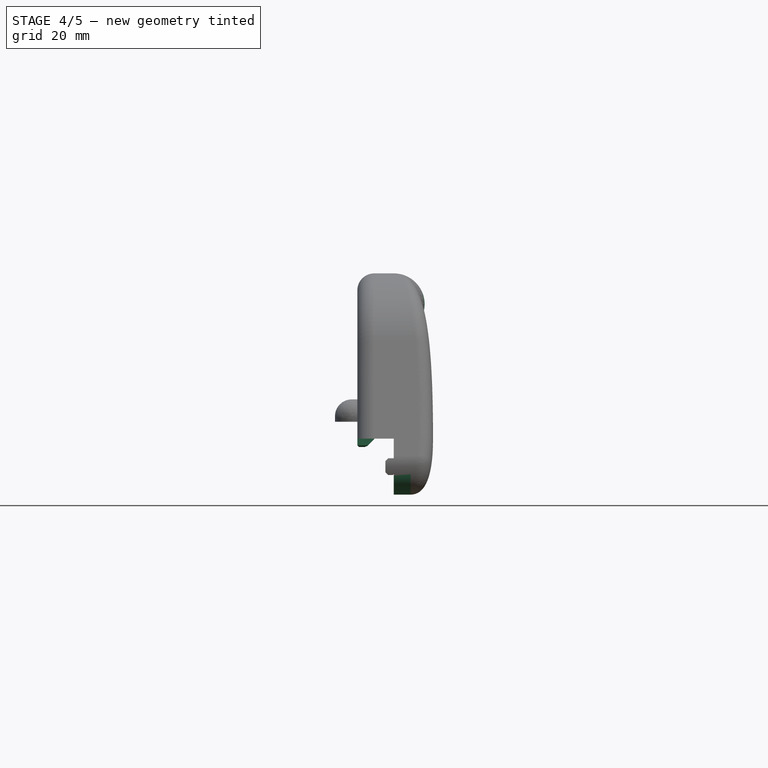
[diagram: stage 4 of 5 — front view after this stage's code; geometry added in this stage tinted green]
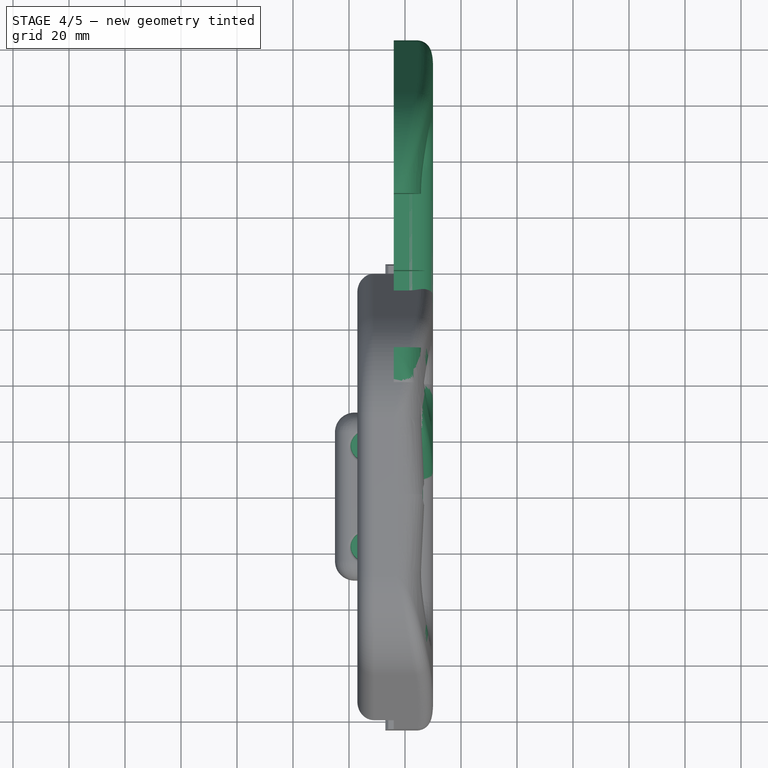
[diagram: stage 4 of 5 — top view after this stage's code; geometry added in this stage tinted green]
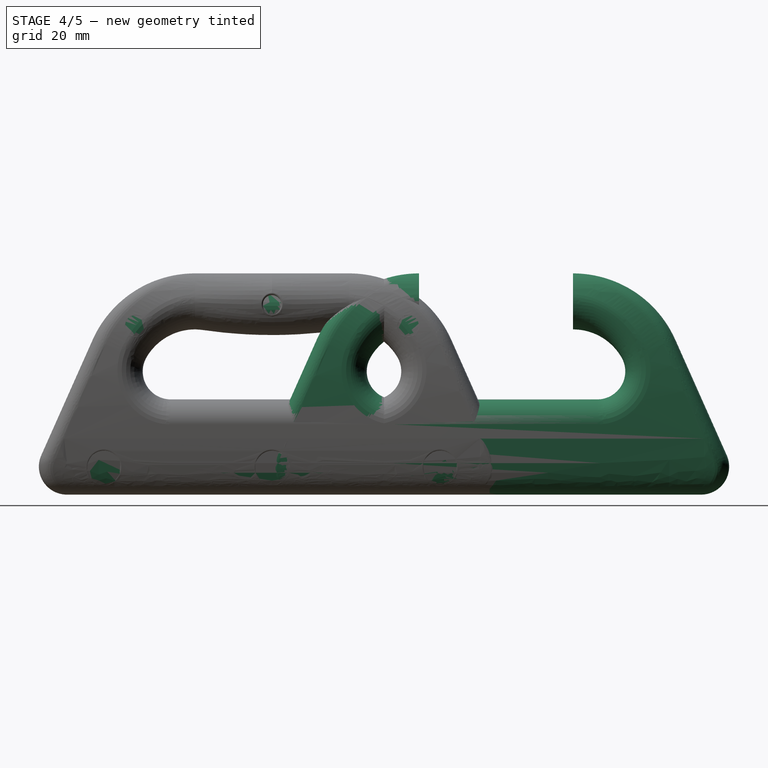
[diagram: stage 4 of 5 — right view after this stage's code; geometry added in this stage tinted green]
FEATURE [PartDesign::Body] Body024
  BaseFeature = -> Body
  Group = -> [Clone006]
  Origin = -> Origin024
  Tip = -> Clone006
FEATURE [PartDesign::FeatureBase] Clone007
  BaseFeature = -> Slice_child1
FEATURE [PartDesign::Body] Body025  label="middle_outer_clone001"
  BaseFeature = -> Slice_child1
  Group = -> [Clone007]
  Origin = -> Origin025
  Tip = -> Clone007
FEATURE [Part::FeaturePython] Slice003  # WARN: FeaturePython — macro-defined, semantics opaque (R4)
  Base = -> Body025
  Mode = 1
  Tolerance = 0
  Tools = -> [Plane001]
FEATURE [Part::FeaturePython] Slice003_child0  label="middle_raw"  # WARN: FeaturePython — macro-defined, semantics opaque (R4)
  Base = -> Slice003
  FilterType = 1
  Invert = false
  OverrideMaxVal = 0
  WindowFrom = 80
  WindowTo = 100
  items = 0
FEATURE [Part::FeaturePython] Slice003_child1  label="outer_raw"  # WARN: FeaturePython — macro-defined, semantics opaque (R4)
  Base = -> Slice003
  FilterType = 1
  Invert = false
  OverrideMaxVal = 0
  WindowFrom = 80
  WindowTo = 100
  items = 1
FEATURE [PartDesign::Body] Body026  label="middle_outer_clone002"
  BaseFeature = -> Slice_child1
  Group = -> [Clone008,Sketch046,Pocket020]
  Origin = -> Origin026
  Tip = -> Pocket020
FEATURE [Sketcher::SketchObject] Sketch047
  FullyConstrained = false
  MapMode = 5
  Support = -> [XY_Plane027]
  expr: Constraints[11] = Spreadsheet.handle_wall_thickness
  expr: Constraints[2] = Spreadsheet.hand_hole_height
  expr: Constraints[4] = Spreadsheet.Misumi_Aluminium_Profile_Width
  expr: Constraints[5] = Spreadsheet.panel_thickness + Spreadsheet.Foam_Thickness
  expr: Constraints[7] = Spreadsheet.handle_wall_thickness
  sketch-geometry (12):
    g0: LineSegment StartX=0 StartY=26.0011 StartZ=0 EndX=71.9997 EndY=26 EndZ=0
    g1: LineSegment StartX=0 StartY=59 StartZ=0 EndX=0 EndY=34 EndZ=0
    g2: LineSegment StartX=0 StartY=20 StartZ=0 EndX=71.9997 EndY=20 EndZ=0
    g3: GeomPoint X=0 Y=79 Z=0
    g4: LineSegment StartX=0 StartY=79 StartZ=0 EndX=27.5 EndY=79 EndZ=0
    g5: ArcOfCircle CenterX=27.6537 CenterY=39.0006 CenterZ=0 NormalX=0 NormalY=0 NormalZ=1 AngleXU=0 Radius=20 StartAngle=1.57848 EndAngle=1.71602
    g6: LineSegment StartX=0 StartY=59 StartZ=0 EndX=27.5 EndY=59 EndZ=0
    g7: ArcOfCircle CenterX=0.149249 CenterY=227.062 CenterZ=0 NormalX=0 NormalY=0 NormalZ=1 AngleXU=0 Radius=170.063 StartAngle=4.71151 EndAngle=4.85761
    g8: LineSegment StartX=0 StartY=79 StartZ=0 EndX=27.5 EndY=79 EndZ=0
    g9: GeomPoint X=0 Y=57 Z=0
    g10: GeomPoint X=0 Y=57 Z=0
    g11: GeomPoint X=27.5 Y=59 Z=0
  constraints (31):
    c: Vertical(g1)
    c: PointOnObject(g1,g-2)
    c: DistanceY(g1,g1) = 25
    c: Equal(g2,g0)
    c: DistanceY(g-1,g2) = 20
    c: DistanceY(g2,g0) = 6
    c: PointOnObject(g3,g-2)
    c: DistanceY(g1,g3) = 20
    c: Coincident(g4,g8) = 1.5708
    c: Coincident(g8,g4) = 1.5708
    c: PointOnObject(g3,g4)
    c: Radius(g5) = 20
    c: PointOnObject(g1,g6)
    c: PointOnObject(g9,g7)
    c: Coincident(g10,g9)
    c: PointOnObject(g9,g1)
    c: DistanceX(g8,g8) = 27.5
    c: Tangent(g7,g5) = 1.5708
    c: DistanceY(g9,g1) = 2
    c: PointOnObject(g11,g5)
    c: Coincident(g11,g6)
    c: Vertical(g8,g6)
    c: PointOnObject(g7,g1)
    c: PointOnObject(g0,g-2)
    c: PointOnObject(g2,g-2)
    c: Horizontal(g8)
    c: PointOnObject(g8,g-2)
    c: Horizontal(g6)
    c: PointOnObject(g6,g-2)
    c: DistanceX(g5) = 27.6537
    c: DistanceY(g5) = 39.0006
FEATURE [PartDesign::Body] Body027  label="base_part001"
  Group = -> [Sketch047]
  Origin = -> Origin027
  Placement = pos=(16,0,0) rot=(0.57735,-0.57735,-0.57735;2.0944rad)
FEATURE [PartDesign::FeatureBase] Clone009
  BaseFeature = -> Body026
  Placement = pos=(0,80,0) rot=(0,0,1;0rad)
FEATURE [PartDesign::Body] Body028
  BaseFeature = -> Body026
  Group = -> [Clone009]
  Origin = -> Origin028
  Tip = -> Clone009
FEATURE [Part::FeaturePython] JoinCurve002  # WARN: FeaturePython — macro-defined, semantics opaque (R4)
  Active = false
  ApproxTolerance = 0.001
  Continuity = 5
  CornerBreak = false
  DegreeMax = 5
  DegreeMin = 3
  Edges = -> [Clone009]
  ForceClosed = false
  ForceContact = true
  Parametrization = 0
  Reverse = false
  Samples = 100
  StartOffset = 0
  Tolerance = 0.01
FEATURE [Sketcher::SketchObject] Sketch048
  FullyConstrained = true
  MapMode = 5
  Placement = pos=(0,0,0) rot=(1,0,0;1.5708rad)
  Support = -> [XZ_Plane029]
  sketch-geometry (2):
    g0: ArcOfCircle CenterX=16 CenterY=68 CenterZ=0 NormalX=0 NormalY=0 NormalZ=1 AngleXU=0 Radius=11 StartAngle=4.71239 EndAngle=7.85398
    g1: LineSegment StartX=16 StartY=79 StartZ=0 EndX=16 EndY=57 EndZ=0
  constraints (7):
    c: Coincident(g1,g0)
    c: Coincident(g1,g0)
    c: Vertical(g1)
    c: PointOnObject(g0,g1)
    c: Diameter(g0) = 22
    c: DistanceX(g-1,g0) = 16
    c: DistanceY(g-1,g0) = 79
FEATURE [PartDesign::Body] Body029
  Group = -> [Sketch048]
  Origin = -> Origin029
FEATURE [Part::FeaturePython] JoinCurve003  # WARN: FeaturePython — macro-defined, semantics opaque (R4)
  Active = false
  ApproxTolerance = 0.001
  Continuity = 5
  CornerBreak = false
  DegreeMax = 5
  DegreeMin = 3
  Edges = -> [Sketch048]
  ForceClosed = false
  ForceContact = true
  Parametrization = 0
  Reverse = false
  Samples = 100
  StartOffset = 0
  Tolerance = 0.01
FEATURE [Sketcher::SketchObject] Sketch049
  FullyConstrained = true
  MapMode = 5
  Placement = pos=(0,0,0) rot=(1,0,0;1.5708rad)
  Support = -> [XZ_Plane030]
  sketch-geometry (2):
    g0: ArcOfCircle CenterX=16 CenterY=68 CenterZ=0 NormalX=0 NormalY=0 NormalZ=1 AngleXU=0 Radius=11 StartAngle=4.71239 EndAngle=7.85398
    g1: LineSegment StartX=16 StartY=79 StartZ=0 EndX=16 EndY=57 EndZ=0
  constraints (7):
    c: Coincident(g1,g0)
    c: Coincident(g1,g0)
    c: Vertical(g1)
    c: PointOnObject(g0,g1)
    c: Diameter(g0) = 22
    c: DistanceX(g-1,g0) = 16
    c: DistanceY(g-1,g0) = 79
FEATURE [PartDesign::Pad] Pad014
  Direction = (0,-1,-2e-16)
  Length = 0.01
  Length2 = 10
  Midplane = true
  Placement = pos=(0,0,0) rot=(1,0,0;1.5708rad)
  Profile = -> Sketch049
  ReferenceAxis = -> Sketch049 [N_Axis]
  Type = 0
FEATURE [Sketcher::SketchObject] Sketch052
  ExternalGeometry = -> [Pocket022]
  FullyConstrained = true
  MapMode = 5
  Placement = pos=(0,0,34) rot=(0,0,1;0rad)
  Support = -> [Pocket022]
  expr: Constraints[3] = Spreadsheet.hole_ef_distance
  expr: Constraints[4] = Spreadsheet.Misumi_Aluminium_Profile_Width / 2
  expr: Constraints[6] = Spreadsheet.M5_HOLE_DIAMETER - 0.4
  sketch-geometry (5):
    g0: Circle CenterX=6 CenterY=-62 CenterZ=0 NormalX=0 NormalY=0 NormalZ=1 AngleXU=0 Radius=2.7
    g1: Circle CenterX=6 CenterY=-98 CenterZ=0 NormalX=0 NormalY=0 NormalZ=1 AngleXU=0 Radius=2.7
    g2: LineSegment StartX=6 StartY=-62 StartZ=0 EndX=6 EndY=-98 EndZ=0
    g3: LineSegment StartX=6 StartY=-62 StartZ=0 EndX=16 EndY=-43.8397 EndZ=0
    g4: LineSegment StartX=16 StartY=-116.16 StartZ=0 EndX=6 EndY=-98 EndZ=0
  constraints (12):
    c: Coincident(g2,g0)
    c: Coincident(g2,g1)
    c: Parallel(g2,g-3)
    c: Distance(g0,g1) = 36
    c: DistanceX(g0,g-3) = 10
    c: Equal(g0,g1)
    c: Diameter(g0) = 5.4
    c: Coincident(g3,g-3)
    c: Coincident(g4,g-3)
    c: Coincident(g4,g1)
    c: Equal(g4,g3)
    c: Coincident(g0,g3)
FEATURE [Sketcher::SketchObject] Sketch055
  ExternalGeometry = -> [Pocket022]
  FullyConstrained = true
  MapMode = 5
  Placement = pos=(16,0,0) rot=(0.57735,0.57735,0.57735;2.0944rad)
  Support = -> [Pocket022]
  expr: Constraints[5] = Spreadsheet.M3_HEAT_SET_INSERT_DIAMETER + 0.1
  sketch-geometry (3):
    g0: Circle CenterX=-128.713 CenterY=60.2132 CenterZ=0 NormalX=0 NormalY=0 NormalZ=1 AngleXU=0 Radius=2.2
    g1: Circle CenterX=-80 CenterY=68 CenterZ=0 NormalX=0 NormalY=0 NormalZ=1 AngleXU=0 Radius=2.2
    g2: Circle CenterX=-31.2868 CenterY=60.2132 CenterZ=0 NormalX=0 NormalY=0 NormalZ=1 AngleXU=0 Radius=2.2
  constraints (6):
    c: Coincident(g0,g-3)
    c: Coincident(g1,g-5)
    c: Coincident(g2,g-4)
    c: Equal(g0,g1)
    c: Equal(g1,g2)
    c: Diameter(g1) = 4.4
FEATURE [PartDesign::Pocket] Pocket023  label="hole_for_heat_set_insert"
  BaseFeature = -> Pocket022
  Direction = (-1,-1e-16,1e-16)
  Length = 4
  Length2 = 5
  Profile = -> Sketch055
  ReferenceAxis = -> Sketch055 [N_Axis]
  Type = 0
  expr: Length = Spreadsheet.M3_HEAT_SET_INSERT_LENGTH
FEATURE [PartDesign::Pocket] Pocket024
  BaseFeature = -> Pocket023
  Direction = (0,0,-1)
  Length = 5
  Length2 = 5
  Profile = -> Sketch052
  ReferenceAxis = -> Sketch052 [N_Axis]
  Type = 1
FEATURE [Sketcher::SketchObject] Sketch053
  ExternalGeometry = -> [Pocket024]
  FullyConstrained = true
  MapMode = 5
  Placement = pos=(0,0,34) rot=(0,0,1;0rad)
  expr: Constraints[1] = Spreadsheet.M5_BHCS_HEAD_DIAMETER + 1
  sketch-geometry (2):
    g0: Circle CenterX=6 CenterY=-62 CenterZ=0 NormalX=0 NormalY=0 NormalZ=1 AngleXU=0 Radius=5.25
    g1: Circle CenterX=6 CenterY=-98 CenterZ=0 NormalX=0 NormalY=0 NormalZ=1 AngleXU=0 Radius=5.25
  constraints (4):
    c: Equal(g1,g0)
    c: Diameter(g0) = 10.5
    c: Coincident(g0,g-3)
    c: Coincident(g1,g-4)
FEATURE [PartDesign::Pocket] Pocket025
  BaseFeature = -> Pocket024
  Direction = (0,0,-1)
  Length = 3.25
  Length2 = 5
  Profile = -> Sketch053
  ReferenceAxis = -> Sketch053 [N_Axis]
  Type = 0
  expr: Length = Spreadsheet.M5_BHCS_HEAD_LENGTH + 0.5
FEATURE [Sketcher::SketchObject] Sketch054
  ExternalGeometry = -> [Pocket025]
  FullyConstrained = true
  MapMode = 5
  Placement = pos=(4e-15,-4e-15,20) rot=(1,0,0;3.14159rad)
  expr: Constraints[7] = Spreadsheet.Misumi_Aluminium_Profile_Slot_Width
  sketch-geometry (17):
    g0: LineSegment StartX=9 StartY=87 StartZ=0 EndX=9 EndY=73 EndZ=0
    g1: LineSegment StartX=3 StartY=109 StartZ=0 EndX=9 EndY=109 EndZ=0
    g2: LineSegment StartX=3 StartY=87 StartZ=0 EndX=9 EndY=87 EndZ=0
    g3: LineSegment StartX=9 StartY=73 StartZ=0 EndX=3 EndY=73 EndZ=0
    g4: LineSegment StartX=3 StartY=51 StartZ=0 EndX=9 EndY=51 EndZ=0
    g5: LineSegment StartX=3 StartY=109 StartZ=0 EndX=6 EndY=98 EndZ=0
    g6: LineSegment StartX=6 StartY=98 StartZ=0 EndX=3 EndY=87 EndZ=0
    g7: LineSegment StartX=3 StartY=73 StartZ=0 EndX=6 EndY=62 EndZ=0
    g8: LineSegment StartX=6 StartY=62 StartZ=0 EndX=3 EndY=51 EndZ=0
    g9: LineSegment StartX=9 StartY=109 StartZ=0 EndX=6 EndY=98 EndZ=0
    g10: LineSegment StartX=3 StartY=109 StartZ=0 EndX=3 EndY=153.177 EndZ=0
    g11: LineSegment StartX=3 StartY=153.177 StartZ=0 EndX=9 EndY=153.177 EndZ=0
    g12: LineSegment StartX=9 StartY=153.177 StartZ=0 EndX=9 EndY=109 EndZ=0
    g13: LineSegment StartX=3 StartY=51 StartZ=0 EndX=3 EndY=6.82302 EndZ=0
    g14: LineSegment StartX=3 StartY=6.82302 StartZ=0 EndX=9 EndY=6.82302 EndZ=0
    g15: LineSegment StartX=9 StartY=6.82302 StartZ=0 EndX=9 EndY=51 EndZ=0
    g16: LineSegment StartX=3 StartY=87 StartZ=0 EndX=3 EndY=73 EndZ=0
  constraints (44):
    c: Vertical(g0)
    c: Horizontal(g1)
    c: Coincident(g2,g0)
    c: Horizontal(g2)
    c: Coincident(g3,g0)
    c: Horizontal(g4)
    c: Horizontal(g3)
    c: DistanceX(g4,g4) = 6
    c: Equal(g4,g3)
    c: Equal(g1,g2)
    c: Coincident(g5,g1)
    c: Coincident(g6,g5)
    c: Coincident(g6,g2)
    c: Coincident(g7,g3)
    c: Coincident(g8,g7)
    c: Coincident(g8,g4)
    c: Equal(g7,g8)
    c: Equal(g8,g6)
    c: DistanceY(g4,g3) = 22
    c: DistanceY(g2,g1) = 22
    c: Coincident(g5,g-3)
    c: Coincident(g-4,g7)
    c: Coincident(g9,g1)
    c: Coincident(g9,g5)
    c: Equal(g5,g9)
    c: Vertical(g1,g0)
    c: Vertical(g0,g4)
    c: Equal(g2,g3)
    c: Coincident(g10,g1)
    c: Coincident(g10,g-9)
    c: Coincident(g11,g10)
    c: Horizontal(g11)
    c: Coincident(g12,g11)
    c: Coincident(g12,g1)
    c: Vertical(g12)
    c: Coincident(g13,g4)
    c: Coincident(g13,g-9)
    c: Coincident(g14,g13)
    c: Horizontal(g14)
    c: Coincident(g15,g14)
    c: Coincident(g15,g4)
    c: Vertical(g15)
    c: Coincident(g16,g2)
    c: Coincident(g3,g16)
FEATURE [PartDesign::Pad] Pad015
  BaseFeature = -> Pocket025
  Direction = (0,0,-1)
  Length = 3
  Length2 = 10
  Profile = -> Sketch054
  ReferenceAxis = -> Sketch054 [N_Axis]
  Type = 0
FEATURE [PartDesign::Chamfer] Chamfer
  Angle = 45
  Base = -> Pad015 [Edge135,Edge140,Edge141]
  BaseFeature = -> Pad015
  ChamferType = 0
  FlipDirection = false
  Size = 0.8
  Size2 = 1
  SupportTransform = false
  UseAllEdges = false
FEATURE [PartDesign::Chamfer] Chamfer001
  Angle = 45
  Base = -> Chamfer [Edge107,Edge100,Edge78]
  BaseFeature = -> Chamfer
  ChamferType = 0
  FlipDirection = false
  Size = 2.8
  Size2 = 1
  SupportTransform = false
  UseAllEdges = false
FEATURE [PartDesign::Chamfer] Chamfer002
  Angle = 45
  Base = -> Chamfer001 [Face50,Face48,Face5]
  BaseFeature = -> Chamfer001
  ChamferType = 0
  FlipDirection = false
  Size = 0.6
  Size2 = 1
  SupportTransform = false
  UseAllEdges = false
FEATURE [PartDesign::Fillet] Fillet007
  Base = -> Chamfer002 [Edge135,Edge141]
  BaseFeature = -> Chamfer002
  Radius = 1
  SupportTransform = false
  UseAllEdges = false
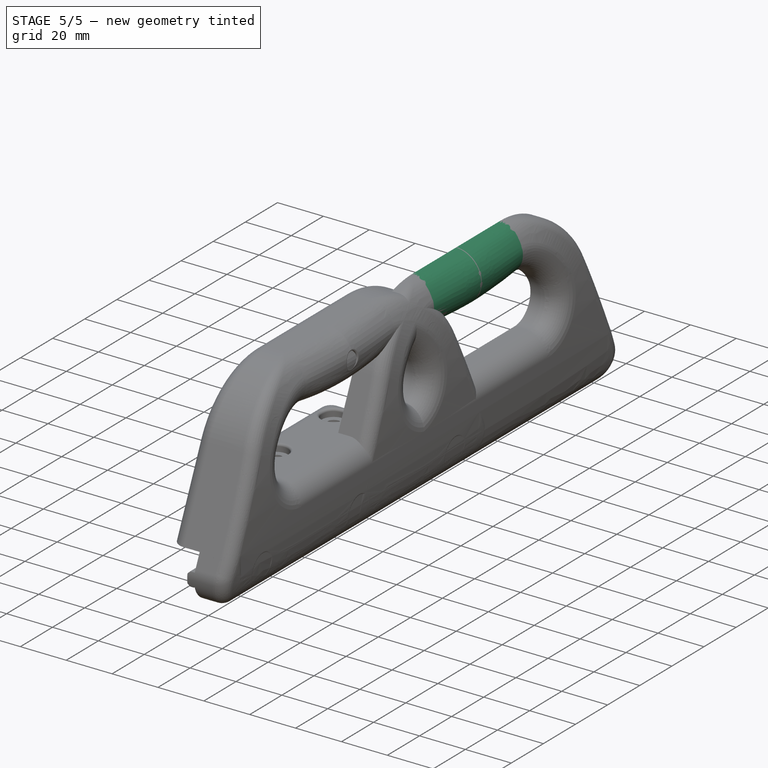
[diagram: stage 5 of 5 — iso view after this stage's code; geometry added in this stage tinted green]
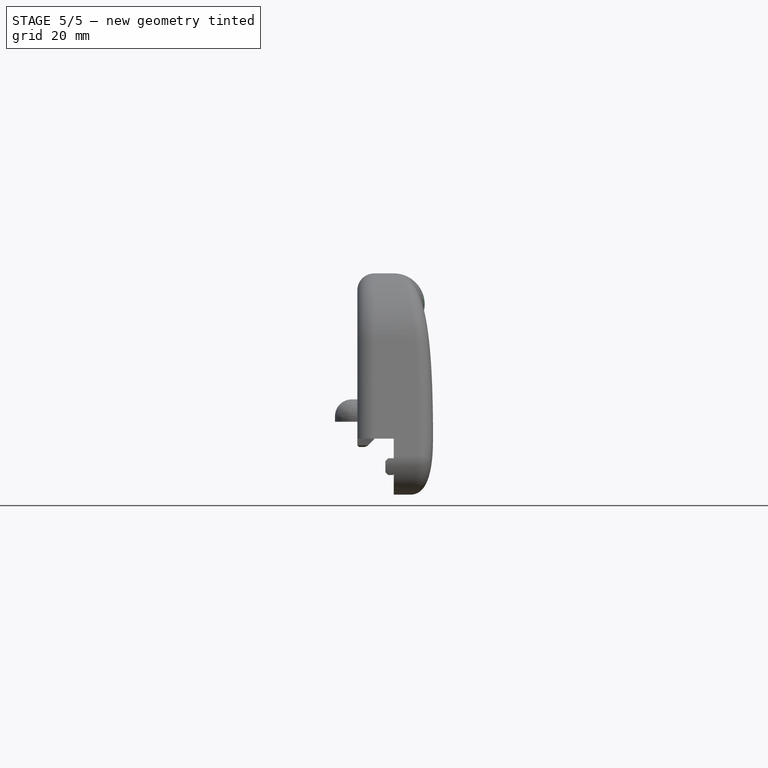
[diagram: stage 5 of 5 — front view after this stage's code; geometry added in this stage tinted green]
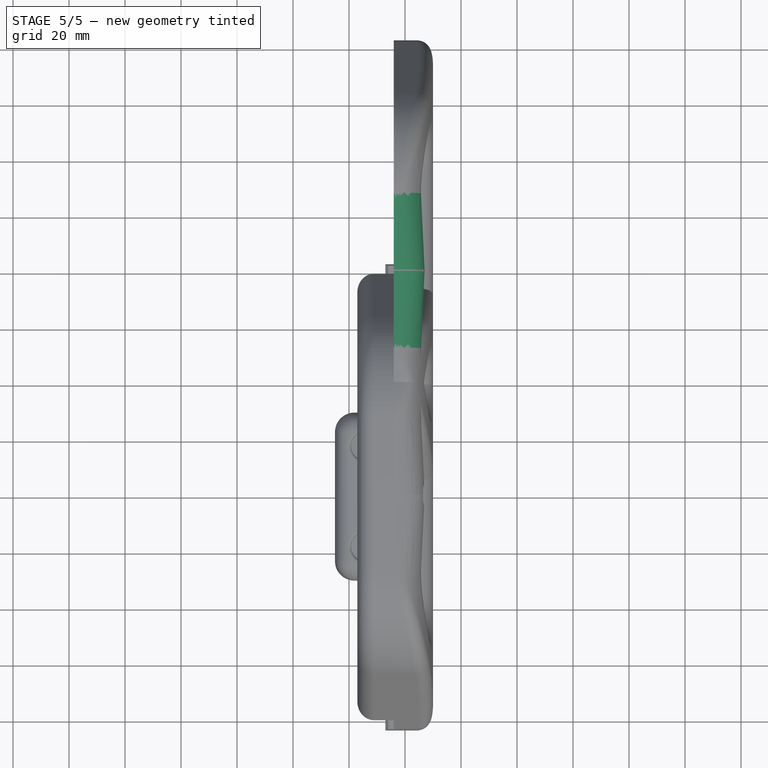
[diagram: stage 5 of 5 — top view after this stage's code; geometry added in this stage tinted green]
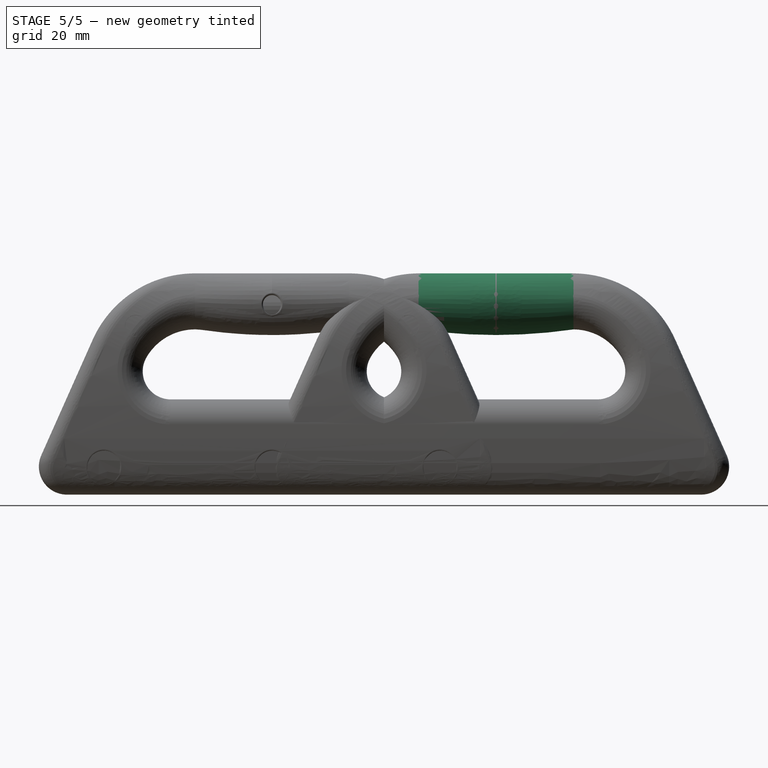
[diagram: stage 5 of 5 — right view after this stage's code; geometry added in this stage tinted green]
FEATURE [Spreadsheet::Sheet] Spreadsheet
  cells = A1=Screw Data; A2=DIN912 - SHCS; A3=ISO 7380-1; A4=M3 DIN912; A5=M3_SHCS_HEAD_LENGTH; B5(M3_SHCS_HEAD_LENGTH)=3; A6=M3_SHCS_HEAD_DIAMETER; B6(M3_SHCS_HEAD_DIAMETER)=5.5; A7=M3_SHCS_HEX_WIDTH; B7(M3_SHCS_HEX_WIDTH)=2.5; A8=M3_BHCS_HEAD_LENGTH; B8(M3_BHCS_HEAD_LENGTH)=1.65; A9=M3_BHCS_HEAD_DIAMETER; B9(M3_BHCS_HEAD_DIAMETER)=5.7; A10=M3_HOLE_DIAMETER; B10(M3_HOLE_DIAMETER)=3.6; A11=M3_THREAD_HOLE_DIAMETER; B11(M3_THREAD_HOLE_DIAMETER)=2.5; A12=M3_CSHS_HEAD_LENGTH; B12(M3_CSHS_HEAD_LENGTH)=1.7; A13=M3_CSHS_HEAD_DIAMETER; B13(M3_CSHS_HEAD_DIAMETER)=6; A14=M3_CSHS_HEX_WIDTH; B14(M3_CSHS_HEX_WIDTH)=2; A16=M4; A17=M4_SHCS_HEAD_LENGTH; B17(M4_SHCS_HEAD_LENGTH)=4; A18=M4_SHCS_HEAD_DIAMETER; B18(M4_SHCS_HEAD_DIAMETER)=7; A19=M4_SHCS_HEX_DIAMETER; B19(M4_SHCS_HEX_DIAMETER)=3; A20=M4_BHCS_HEAD_LENGTH; B20(M4_BHCS_HEAD_LENGTH)=2.2; A21=M4_BHCS_HEAD_DIAMETER; B21(M4_BHCS_HEAD_DIAMETER)=7.6; A22=M4_HOLE_DIAMETER; B22(M4_HOLE_DIAMETER)=4.8; A23=M4_THREAD_HOLE_DIAMETER; B23(M4_THREAD_HOLE_DIAMETER)=3.3; A25=M5; A26=M5_SHCS_HEAD_LENGTH; B26(M5_SHCS_HEAD_LENGTH)=5; A27=M5_SHCS_HEAD_DIAMETER; B27(M5_SHCS_HEAD_DIAMETER)=8.5; A28=M5_SHCS_HEX_DIAMETER; B28(M5_SHCS_HEX_DIAMETER)=4; A29=M5_BHCS_HEAD_LENGTH; B29(M5_BHCS_HEAD_LENGTH)=2.75; A30=M5_BHCS_HEAD_DIAMETER; B30(M5_BHCS_HEAD_DIAMETER)=9.5; A31=M5_HOLE_DIAMETER; B31(M5_HOLE_DIAMETER)=5.8; A32=M5_THREAD_HOLE_DIAMETER; B32(M5_THREAD_HOLE_DIAMETER)=4.2; A35=Washer DIN125 A; A36=M3; A37=M3_WASHER_ID; B37(M3_WASHER_ID)=3.2; A38=M3_WASHER_OD; B38(M3_WASHER_OD)=7; A39=M3_WASHER_THICKNESS; B39(M3_WASHER_THICKNESS)=0.5; A41=M4; A42=M4_WASHER_ID; B42(M4_WASHER_ID)=4.3; A43=M4_WASHER_OD; B43(M4_WASHER_OD)=9; A44=M4_WASHER_THICKNESS; B44(M4_WASHER_THICKNESS)=0.8; A46=M5; A47=M5_WASHER_ID; B47(M5_WASHER_ID)=5.3; A48=M5_WASHER_OD; B48(M5_WASHER_OD)=10; A49=M5_WASHER_THICKNESS; B49(M5_WASHER_THICKNESS)=1; A51=Shim DIN 988; A52=M5; A53=M5_SHIM_ID; B53(M5_SHIM_ID)=5; A54=M5_SHIM_OD; B54(M5_SHIM_OD)=10; A55=M5_SHIM_THICKNESS; B55(M5_SHIM_THICKNESS)=1; A57=Heat Set Insert; A58=M3; A59=M3_HEAT_SET_INSERT_DIAMETER; B59(M3_HEAT_SET_INSERT_DIAMETER)=4.3; A60=M3_HEAT_SET_INSERT_LENGTH; B60(M3_HEAT_SET_INSERT_LENGTH)=4; A62=M4; A63=M4_HEAT_SET_INSERT_DIAMETER; B63(M4_HEAT_SET_INSERT_DIAMETER)=5.4; A64=M4_HEAT_SET_INSERT_LENGTH; B64(M4_HEAT_SET_INSERT_LENGTH)=6; A66=M5; A67=M5_HEAT_SET_INSERT_DIAMETER; B67(M5_HEAT_SET_INSERT_DIAMETER)=6.1; A68=M5_HEAT_SET_INSERT_LENGTH; B68(M5_HEAT_SET_INSERT_LENGTH)=6; A71=Misumi Aluminium Profile; A72=Misumi_Aluminium_Profile_Width; B72(Misumi_Aluminium_Profile_Width)=20; A73=Misumi_Aluminium_Profile_Slot_Width; B73(Misumi_Aluminium_Profile_Slot_Width)=6; A76=Panel_Thickness; B76(panel_thickness)=3; A77=Foam_Thickness; B77(Foam_Thickness)=3; A78=Foam_Width; B78(Foam_Width)=6; A81=hand_hole_width; B81(hand_hole_width)==90mm; A82=hand_hole_height; B82(hand_hole_height)==25mm; A84=handle_wall_thickness; B84(handle_wall_thickness)=20; A85=extrusion_size; B85(extrusion_size)==20mm; A86=cover_lip_thickness; B86(cover_lip_thickness)==8mm; A87=back_part_main_thickness; B87(back_part_main_thickness)==13mm; A88=cover_lip_length; B88(cover_lib_length)==6mm; A89=cover_lip_width; B89(cover_lip_width)==60mm; A90=thickness_middle_part; B90(thickness_middle_part)==6mm; A92=hole_ef_distance; B92(hole_ef_distance)=36; A93=hole_ab_distance; B93(hole_ab_distance)=60
FEATURE [Part::Plane] Plane
  AttacherType = Attacher::AttachEngine3D
  Length = 200
  Placement = pos=(16,-180,-37) rot=(0,-1,0;1.5708rad)
  Width = 200
FEATURE [Part::Plane] Plane001
  AttacherType = Attacher::AttachEngine3D
  Length = 200
  Placement = pos=(22,-180,-35) rot=(0,-1,0;1.5708rad)
  Width = 200
FEATURE [Sketcher::SketchObject] Sketch043
  FullyConstrained = true
  MapMode = 5
  Placement = pos=(0,0,0) rot=(1,0,0;1.5708rad)
  Support = -> [XZ_Plane017]
  sketch-geometry (2):
    g0: ArcOfCircle CenterX=16 CenterY=68 CenterZ=0 NormalX=0 NormalY=0 NormalZ=1 AngleXU=0 Radius=11 StartAngle=4.71239 EndAngle=7.85398
    g1: LineSegment StartX=16 StartY=79 StartZ=0 EndX=16 EndY=57 EndZ=0
  constraints (7):
    c: Coincident(g1,g0)
    c: Coincident(g1,g0)
    c: Vertical(g1)
    c: PointOnObject(g0,g1)
    c: Diameter(g0) = 22
    c: DistanceX(g-1,g0) = 16
    c: DistanceY(g-1,g0) = 79
FEATURE [PartDesign::Pad] Pad
  Direction = (0,-1,-2e-16)
  Length = 0.01
  Length2 = 10
  Midplane = true
  Placement = pos=(0,0,0) rot=(1,0,0;1.5708rad)
  Profile = -> Sketch043
  ReferenceAxis = -> Sketch043 [N_Axis]
  Type = 0
FEATURE [PartDesign::Body] Body017
  Group = -> [Sketch043,Pad]
  Origin = -> Origin017
  Placement = pos=(0,-80,0) rot=(0,0,1;0rad)
  Tip = -> Pad
FEATURE [Sketcher::SketchObject] Sketch044
  FullyConstrained = true
  MapMode = 5
  Placement = pos=(0,0,0) rot=(0.57735,0.57735,0.57735;2.0944rad)
  Support = -> [YZ_Plane020]
  sketch-geometry (5):
    g0: GeomPoint X=0 Y=79 Z=0
    g1: LineSegment StartX=-27.5 StartY=79 StartZ=0 EndX=27.5 EndY=79 EndZ=0
    g2: LineSegment StartX=27.5 StartY=79 StartZ=0 EndX=27.5 EndY=59 EndZ=0
    g3: LineSegment StartX=0 StartY=79 StartZ=0 EndX=27.5 EndY=79 EndZ=0
    g4: ArcOfCircle CenterX=0 CenterY=247.062 CenterZ=0 NormalX=0 NormalY=0 NormalZ=1 AngleXU=0 Radius=190.062 StartAngle=4.71239 EndAngle=4.85759
  constraints (14):
    c: DistanceY(g-1,g0) = 79
    c: DistanceX(g1,g1) = 55
    c: Symmetric(g1,g1,g-2)
    c: PointOnObject(g0,g1)
    c: Vertical(g2)
    c: Coincident(g2,g1)
    c: DistanceY(g2,g2) = 20
    c: Coincident(g1,g3)
    c: Coincident(g0,g3)
    c: PointOnObject(g4,g-2)
    c: Coincident(g4,g2)
    c: PointOnObject(g4,g-2)
    c: DistanceY(g4,g4) = 2
    c: PointOnObject(g3,g-2)
FEATURE [PartDesign::Body] Body020
  Group = -> [Sketch044]
  Origin = -> Origin020
  Placement = pos=(16,0,0) rot=(0,0,1;0rad)
FEATURE [Part::FeaturePython] JoinCurve001  # WARN: FeaturePython — macro-defined, semantics opaque (R4)
  Active = false
  ApproxTolerance = 0.001
  Continuity = 5
  CornerBreak = false
  DegreeMax = 5
  DegreeMin = 3
  Edges = -> [Pad]
  ForceClosed = false
  ForceContact = true
  Parametrization = 0
  Reverse = false
  Samples = 100
  StartOffset = 0
  Tolerance = 0.01
FEATURE [Part::RuledSurface] Ruled_Surface
  Curve1 = -> Sketch044 [Edge1]
  Curve2 = -> Sketch044 [Edge2]
  Orientation = 0
FEATURE [Part::Feature] Compound_solid  label="Compound (Solid)"
  shape: bbox 12.83 x 27.67 x 24.47 mm, 4 faces (baked)
FEATURE [PartDesign::FeatureBase] Clone004
  BaseFeature = -> Compound_solid
FEATURE [PartDesign::Body] Body021
  BaseFeature = -> Compound_solid
  Group = -> [Clone004]
  Origin = -> Origin021
  Tip = -> Clone004
FEATURE [Part::Mirroring] Part__Mirroring  label="Clone004 (Mirror #1)"
  Base = (0,0,0)
  Normal = (0,1,0)
  Source = -> Clone004
FEATURE [Sketcher::SketchObject] Sketch045
  FullyConstrained = true
  MapMode = 5
  Placement = pos=(0,0,0) rot=(1,0,0;1.5708rad)
  Support = -> [XZ_Plane022]
  sketch-geometry (2):
    g0: ArcOfCircle CenterX=16 CenterY=68 CenterZ=0 NormalX=0 NormalY=0 NormalZ=1 AngleXU=0 Radius=11 StartAngle=4.71239 EndAngle=7.85398
    g1: LineSegment StartX=16 StartY=79 StartZ=0 EndX=16 EndY=57 EndZ=0
  constraints (7):
    c: Vertical(g1)
    c: Coincident(g0,g1)
    c: PointOnObject(g0,g1)
    c: Coincident(g0,g1)
    c: Diameter(g0) = 22
    c: DistanceY(g-1,g0) = 79
    c: DistanceX(g-1,g0) = 16
FEATURE [PartDesign::Pad] Pad013
  Direction = (0,-1,-2e-16)
  Length = 0.4
  Length2 = 10
  Midplane = true
  Placement = pos=(0,0,0) rot=(1,0,0;1.5708rad)
  Profile = -> Sketch045
  ReferenceAxis = -> Sketch045 [N_Axis]
  Type = 0
FEATURE [PartDesign::Body] Body022
  Group = -> [Sketch045,Pad013]
  Origin = -> Origin022
  Tip = -> Pad013
FEATURE [PartDesign::FeatureBase] Clone005
  BaseFeature = -> Part__Mirroring
FEATURE [PartDesign::Body] Body023
  BaseFeature = -> Part__Mirroring
  Group = -> [Clone005]
  Origin = -> Origin023
  Tip = -> Clone005
FEATURE [Part::FeaturePython] Connect  # WARN: FeaturePython — macro-defined, semantics opaque (R4)
  Objects = -> [Body021,Body022,Body023]
  Tolerance = 0
FEATURE [Part::Plane] Plane004
  AttacherType = Attacher::AttachEngine3D
  Length = 200
  Placement = pos=(22,-61,0) rot=(0,-1,0;1.5708rad)
  Width = 200
FEATURE [Part::FeaturePython] Slice002  # WARN: FeaturePython — macro-defined, semantics opaque (R4)
  Base = -> Connect
  Mode = 1
  Tolerance = 0
  Tools = -> [Plane004]
FEATURE [Part::FeaturePython] Slice002_child0  label="Slice002.0"  # WARN: FeaturePython — macro-defined, semantics opaque (R4)
  Base = -> Slice002
  FilterType = 1
  Invert = false
  OverrideMaxVal = 0
  WindowFrom = 80
  WindowTo = 100
  items = 0
FEATURE [Part::FeaturePython] Slice002_child1  label="Slice002.1"  # WARN: FeaturePython — macro-defined, semantics opaque (R4)
  Base = -> Slice002
  FilterType = 1
  Invert = false
  OverrideMaxVal = 0
  WindowFrom = 80
  WindowTo = 100
  items = 1
FEATURE [App::DocumentObjectGroup] GrExplode_Slice  label="Exploded Slice"
  Group = -> [Slice_child0,Slice_child1]
FEATURE [PartDesign::FeatureBase] Clone001
  BaseFeature = -> Slice_child1
FEATURE [Sketcher::SketchObject] Sketch
  ExternalGeometry = -> [Clone001]
  FullyConstrained = true
  MapMode = 5
  Placement = pos=(16,-4.5e-15,-3.5e-15) rot=(-0.57735,0.57735,0.57735;4.18879rad)
  Support = -> [Clone001]
  sketch-geometry (6):
    g0: LineSegment StartX=52.325 StartY=84 StartZ=0 EndX=107.675 EndY=84 EndZ=0
    g1: LineSegment StartX=52.5 StartY=79 StartZ=0 EndX=52.325 EndY=84 EndZ=0
    g2: LineSegment StartX=107.675 StartY=84 StartZ=0 EndX=107.5 EndY=79 EndZ=0
    g3: LineSegment StartX=52.325 StartY=84 StartZ=0 EndX=52.325 EndY=44 EndZ=0
    g4: LineSegment StartX=52.325 StartY=44 StartZ=0 EndX=107.675 EndY=44 EndZ=0
    g5: LineSegment StartX=107.675 StartY=44 StartZ=0 EndX=107.675 EndY=84 EndZ=0
  constraints (16):
    c: Horizontal(g0)
    c: DistanceY(g-3,g0) = 5
    c: DistanceX(g0,g0) = 55.35
    c: Coincident(g1,g-3)
    c: Coincident(g2,g0)
    c: Coincident(g2,g-3)
    c: Coincident(g1,g0)
    c: Equal(g1,g2)
    c: Coincident(g0,g3)
    c: Coincident(g0,g5)
    c: Coincident(g4,g5)
    c: Coincident(g3,g4)
    c: Vertical(g3)
    c: Vertical(g5)
    c: Horizontal(g4)
    c: DistanceY(g5,g5) = 40
FEATURE [PartDesign::Pocket] Pocket
  BaseFeature = -> Clone001
  Direction = (1,-2e-16,-2e-16)
  Length = 0.01
  Length2 = 5
  Midplane = true
  Profile = -> Sketch
  ReferenceAxis = -> Sketch [N_Axis]
  Type = 1
FEATURE [PartDesign::Body] Body  label="middle_outer_clone"
  BaseFeature = -> Slice_child1
  Group = -> [Clone001,Sketch,Pocket]
  Origin = -> Origin
  Tip = -> Pocket
FEATURE [PartDesign::FeatureBase] Clone002
  BaseFeature = -> Pocket
FEATURE [PartDesign::Body] Body018
  BaseFeature = -> Pocket
  Group = -> [Clone002]
  Origin = -> Origin018
  Placement = pos=(0,80,0) rot=(0,0,1;0rad)
  Tip = -> Clone002
FEATURE [PartDesign::FeatureBase] Clone003
  BaseFeature = -> Body018
  Placement = pos=(0,80,0) rot=(0,0,1;0rad)
FEATURE [PartDesign::Body] Body019
  BaseFeature = -> Body018
  Group = -> [Clone003]
  Origin = -> Origin019
  Tip = -> Clone003
FEATURE [Part::FeaturePython] JoinCurve  # WARN: FeaturePython — macro-defined, semantics opaque (R4)
  Active = false
  ApproxTolerance = 0.001
  Continuity = 5
  CornerBreak = false
  DegreeMax = 5
  DegreeMin = 3
  Edges = -> [Clone003]
  ForceClosed = false
  ForceContact = true
  Parametrization = 0
  Reverse = false
  Samples = 100
  StartOffset = 0
  Tolerance = 0.01
FEATURE [App::FeaturePython] Sweep_2_rails  # WARN: FeaturePython — macro-defined, semantics opaque (R4)
  Birail = -> Ruled_Surface
  Blending = 1
  Extend = false
  Parametrization = 0
  Points = (961) [(20.3922,-5.71986,56.4118),(20.4045,-5.64516,56.4039),(20.4167,-5.57045,56.3961),(20.429,-5.49574,56.3883),(20.4413,-5.42103,56.3805),+956 more]
  ProfileSamples = 31
  Profiles = -> [JoinCurve001,JoinCurve]
  RailSamples = 31
FEATURE [Part::FeaturePython] Approximation_Curve  # WARN: FeaturePython — macro-defined, semantics opaque (R4)
  ApproxTolerance = 0.0037022
  ClampEnds = false
  Closed = false
  Continuity = 3
  CurvatureWeight = 1
  DegreeMax = 5
  DegreeMin = 3
  FirstIndex = 0
  LastIndex = -1
  LengthWeight = 1
  Method = 0
  Parametrization = 0
  PointObject = -> Sweep_2_rails
  StartOffset = 0
  TorsionWeight = 1
FEATURE [Part::RuledSurface] Ruled_Surface001
  Curve1 = -> Approximation_Curve [Edge2]
  Curve2 = -> Approximation_Curve [Edge4]
  Orientation = 0
FEATURE [Surface::Filling] Surface
  Anisotropy = false
  BoundaryEdges = -> [Approximation_Curve,Ruled_Surface001]
  BoundaryOrder = [0,0]
  Degree = 3
  Iterations = 2
  MaximumDegree = 8
  MaximumSegments = 9
  PointsOnCurve = 15
  TolAngular = 0.01
  TolCurvature = 0.1
  Tolerance2d = 1e-05
  Tolerance3d = 0.0001
FEATURE [Surface::Filling] Surface001
  Anisotropy = false
  BoundaryEdges = -> [Ruled_Surface001,Approximation_Curve]
  BoundaryOrder = [0,0]
  Degree = 3
  Iterations = 2
  MaximumDegree = 8
  MaximumSegments = 9
  PointsOnCurve = 15
  TolAngular = 0.01
  TolCurvature = 0.1
  Tolerance2d = 1e-05
  Tolerance3d = 0.0001
FEATURE [Part::Compound] Compound
  Links = -> [Ruled_Surface001,Surface,Surface001,Approximation_Curve]
FEATURE [PartDesign::FeatureBase] Clone006
  BaseFeature = -> Body
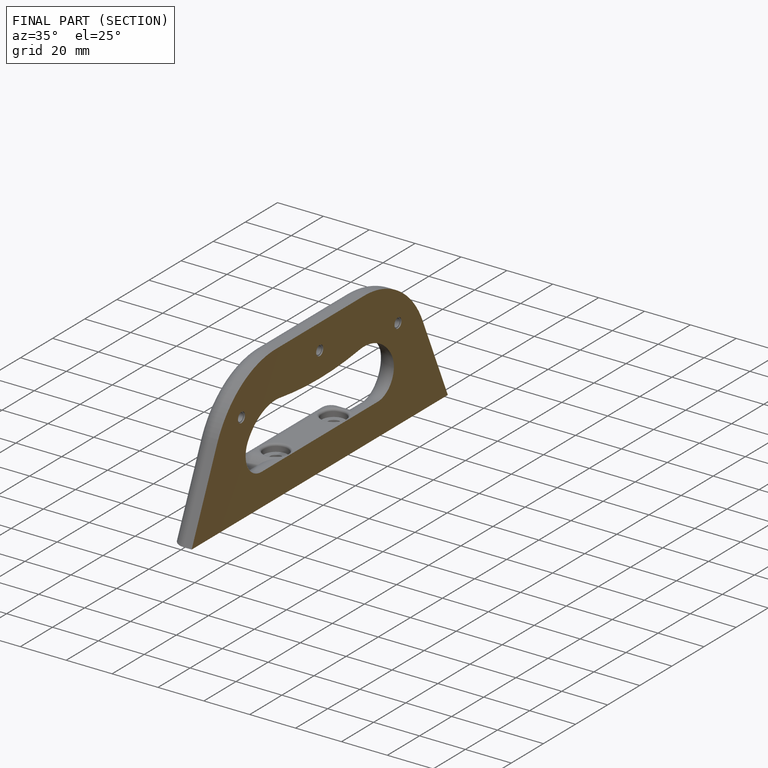
[diagram: finished part — half-section view (interior)]
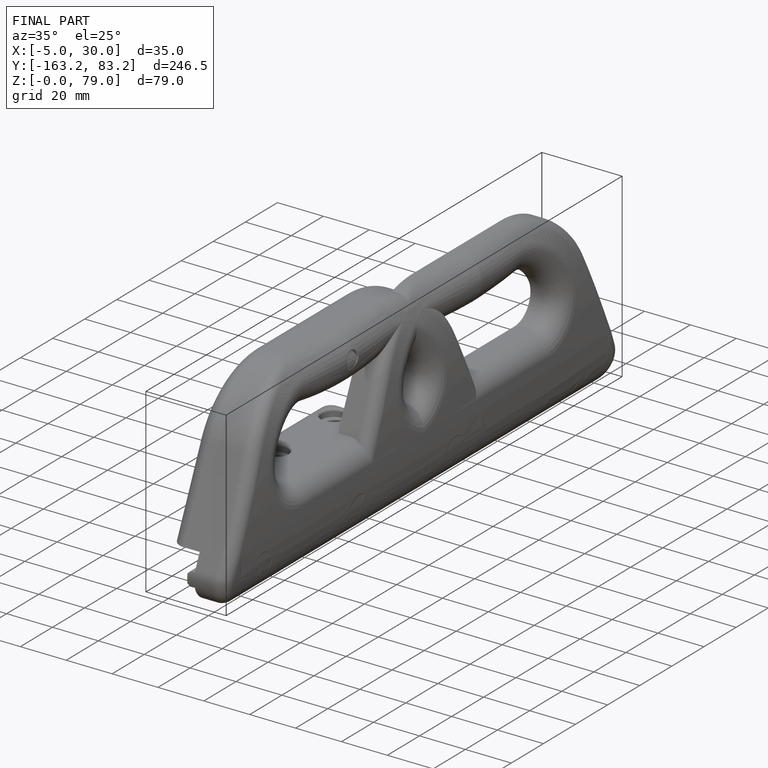
[diagram: finished part — iso view with bounding-box wireframe]
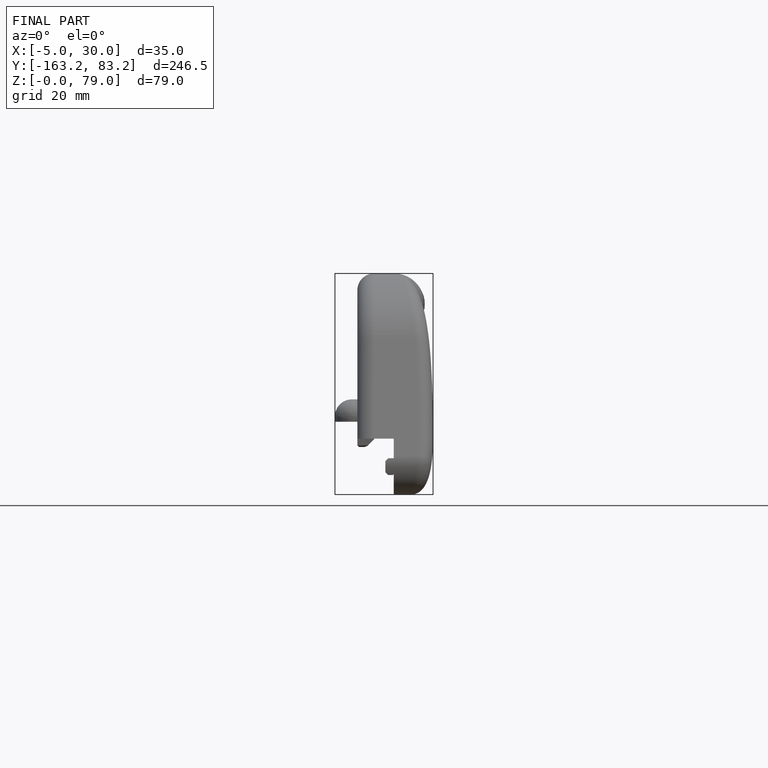
[diagram: finished part — front view with bounding-box wireframe]
